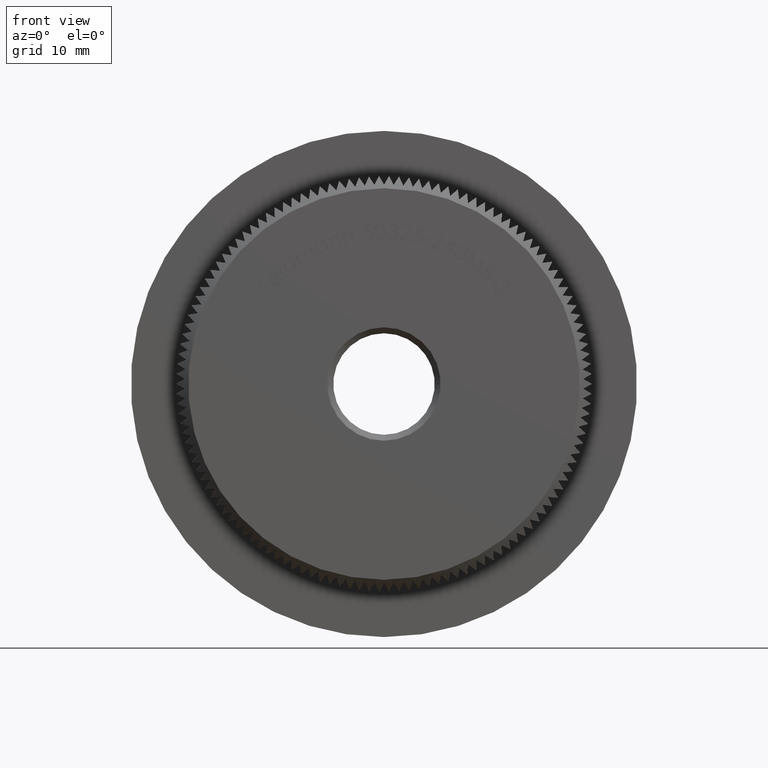
[diagram: clean part render]
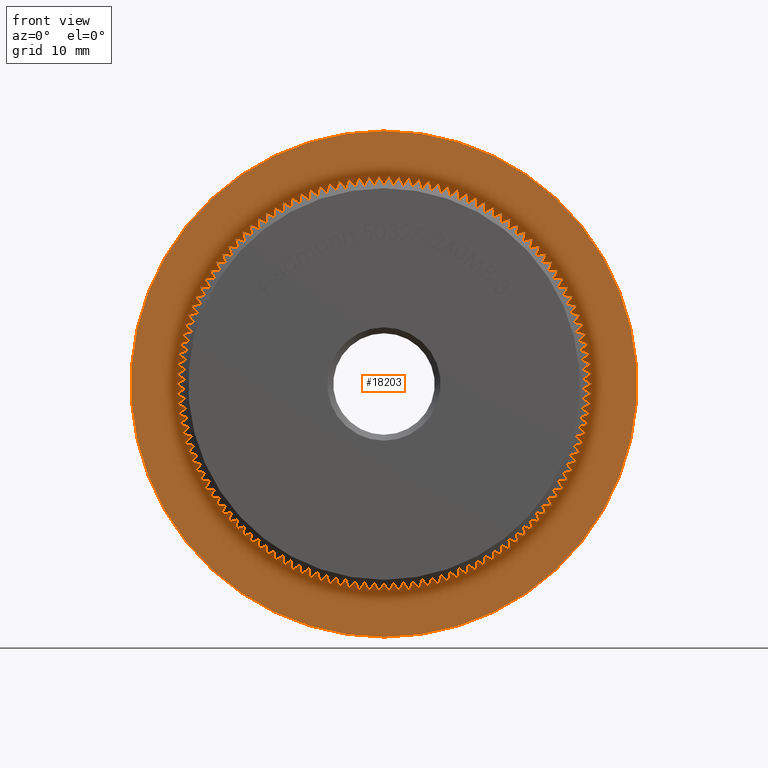
[diagram: same view with one face highlighted and labeled with its STEP entity id]
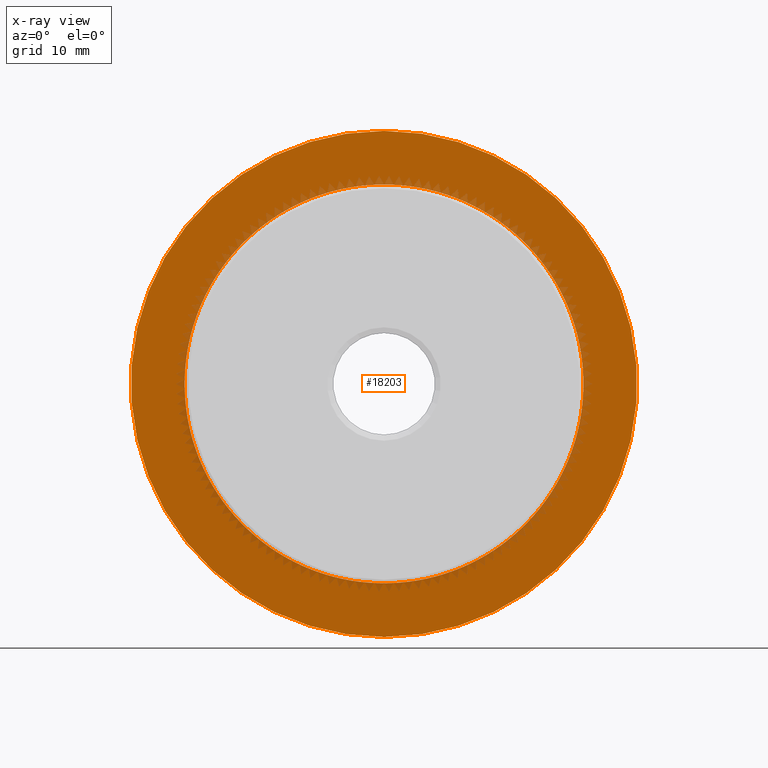
[diagram: x-ray of the same camera — body ghosted, the highlighted face saturated]
A machine part, front view. The second image highlights one B-rep face of the part: STEP entity #18203.
The next image is the same camera in x-ray: the body ghosted, the highlighted face saturated — about 7% of this face is hidden behind the body in this view.
In plain terms, the highlighted planar face has unit normal (0, -1, -0).
Its self-contained STEP definition (entity closure, byte-faithful):
#19 = DIRECTION ( 'NONE',  ( 0.0000000000000000000, 0.0000000000000000000, -1.000000000000000000 ) ) ;
#50 = CIRCLE ( 'NONE', #5882, 16.69999999999999900 ) ;
#127 = ORIENTED_EDGE ( 'NONE', *, *, #10886, .F. ) ;
#140 = VERTEX_POINT ( 'NONE', #141 ) ;
#141 = CARTESIAN_POINT ( 'NONE',  ( 5.542861147246220800, 7.999999999999994700, 15.75330728140438400 ) ) ;
#148 = DIRECTION ( 'NONE',  ( 0.0000000000000000000, 0.0000000000000000000, -1.000000000000000000 ) ) ;
#149 = DIRECTION ( 'NONE',  ( 0.0000000000000000000, 0.0000000000000000000, -1.000000000000000000 ) ) ;
#156 = ORIENTED_EDGE ( 'NONE', *, *, #21230, .F. ) ;
#183 = CARTESIAN_POINT ( 'NONE',  ( -10.45729279888976700, 8.000000000000000000, -13.02056171285587100 ) ) ;
#197 = CARTESIAN_POINT ( 'NONE',  ( 0.0000000000000000000, 8.000000000000001800, 0.0000000000000000000 ) ) ;
#265 = CARTESIAN_POINT ( 'NONE',  ( 0.0000000000000000000, 8.000000000000001800, 0.0000000000000000000 ) ) ;
#331 = CARTESIAN_POINT ( 'NONE',  ( 15.61477125284648300, 8.000000000000003600, -5.921901613610197400 ) ) ;
#357 = EDGE_CURVE ( 'NONE', #4250, #27095, #32409, .T. ) ;
#393 = CARTESIAN_POINT ( 'NONE',  ( 14.59526614486292200, 8.000000000000003600, -8.115923001151388800 ) ) ;
#414 = ORIENTED_EDGE ( 'NONE', *, *, #19685, .F. ) ;
#437 = DIRECTION ( 'NONE',  ( -0.0000000000000000000, -1.000000000000000000, -0.0000000000000000000 ) ) ;
#444 = DIRECTION ( 'NONE',  ( -0.0000000000000000000, -1.000000000000000000, -0.0000000000000000000 ) ) ;
#455 = CARTESIAN_POINT ( 'NONE',  ( -7.760876973130950600, 8.000000000000003600, 14.78711562840859600 ) ) ;
#464 = EDGE_CURVE ( 'NONE', #5273, #8386, #18970, .T. ) ;
#475 = VERTEX_POINT ( 'NONE', #331 ) ;
#569 = DIRECTION ( 'NONE',  ( 0.0000000000000000000, 0.0000000000000000000, -1.000000000000000000 ) ) ;
#574 = DIRECTION ( 'NONE',  ( -0.0000000000000000000, -1.000000000000000000, -0.0000000000000000000 ) ) ;
#580 = DIRECTION ( 'NONE',  ( -0.0000000000000000000, -1.000000000000000000, -0.0000000000000000000 ) ) ;
#594 = CIRCLE ( 'NONE', #32447, 16.69999999999999900 ) ;
#608 = CARTESIAN_POINT ( 'NONE',  ( 0.0000000000000000000, 8.000000000000001800, 0.0000000000000000000 ) ) ;
#615 = ORIENTED_EDGE ( 'NONE', *, *, #28428, .T. ) ;
#674 = EDGE_CURVE ( 'NONE', #21058, #32468, #4792, .T. ) ;
#677 = CIRCLE ( 'NONE', #10838, 16.69999999999999900 ) ;
#680 = CARTESIAN_POINT ( 'NONE',  ( 0.0000000000000000000, 8.000000000000001800, 0.0000000000000000000 ) ) ;
#732 = CIRCLE ( 'NONE', #29449, 16.69999999999999900 ) ;
#764 = AXIS2_PLACEMENT_3D ( 'NONE', #30810, #25609, #31021 ) ;
#808 = DIRECTION ( 'NONE',  ( -0.0000000000000000000, -1.000000000000000000, -0.0000000000000000000 ) ) ;
#815 = CARTESIAN_POINT ( 'NONE',  ( 0.0000000000000000000, 8.000000000000001800, 0.0000000000000000000 ) ) ;
#824 = EDGE_CURVE ( 'NONE', #18374, #24059, #21719, .T. ) ;
#840 = CARTESIAN_POINT ( 'NONE',  ( -16.30656601644883000, 8.000000000000000000, -3.603596086022426100 ) ) ;
#899 = ORIENTED_EDGE ( 'NONE', *, *, #22410, .F. ) ;
#942 = CIRCLE ( 'NONE', #16519, 16.69999999999999900 ) ;
#993 = ORIENTED_EDGE ( 'NONE', *, *, #26095, .F. ) ;
#1001 = CARTESIAN_POINT ( 'NONE',  ( -10.45729279888985600, 8.000000000000000000, 13.02056171285579800 ) ) ;
#1003 = CARTESIAN_POINT ( 'NONE',  ( 0.8068334380757372600, 8.000000000000003600, 16.68049818809986500 ) ) ;
#1006 = DIRECTION ( 'NONE',  ( 0.0000000000000000000, 0.0000000000000000000, -1.000000000000000000 ) ) ;
#1007 = EDGE_CURVE ( 'NONE', #13022, #8195, #3983, .T. ) ;
#1032 = ORIENTED_EDGE ( 'NONE', *, *, #26639, .F. ) ;
#1057 = ORIENTED_EDGE ( 'NONE', *, *, #7582, .F. ) ;
#1066 = AXIS2_PLACEMENT_3D ( 'NONE', #13226, #17888, #2901 ) ;
#1071 = EDGE_CURVE ( 'NONE', #4600, #19946, #24094, .T. ) ;
#1072 = DIRECTION ( 'NONE',  ( -0.0000000000000000000, -1.000000000000000000, -0.0000000000000000000 ) ) ;
#1108 = CARTESIAN_POINT ( 'NONE',  ( 0.0000000000000000000, 8.000000000000001800, 0.0000000000000000000 ) ) ;
#1115 = EDGE_CURVE ( 'NONE', #11414, #1269, #7556, .T. ) ;
#1119 = CIRCLE ( 'NONE', #28569, 16.69999999999999900 ) ;
#1130 = CIRCLE ( 'NONE', #19581, 16.69999999999999900 ) ;
#1154 = DIRECTION ( 'NONE',  ( 0.0000000000000000000, 0.0000000000000000000, -1.000000000000000000 ) ) ;
#1269 = VERTEX_POINT ( 'NONE', #15413 ) ;
#1271 = EDGE_CURVE ( 'NONE', #21849, #12929, #17787, .T. ) ;
#1274 = FACE_OUTER_BOUND ( 'NONE', #20031, .T. ) ;
#1279 = DIRECTION ( 'NONE',  ( 0.0000000000000000000, 0.0000000000000000000, -1.000000000000000000 ) ) ;
#1310 = VERTEX_POINT ( 'NONE', #7853 ) ;
#1441 = CARTESIAN_POINT ( 'NONE',  ( 0.0000000000000000000, 8.000000000000001800, 0.0000000000000000000 ) ) ;
#1450 = CARTESIAN_POINT ( 'NONE',  ( 0.0000000000000000000, 8.000000000000001800, 0.0000000000000000000 ) ) ;
#1461 = VERTEX_POINT ( 'NONE', #1001 ) ;
#1473 = ORIENTED_EDGE ( 'NONE', *, *, #14093, .F. ) ;
#1518 = CARTESIAN_POINT ( 'NONE',  ( 0.0000000000000000000, 8.000000000000001800, 0.0000000000000000000 ) ) ;
#1526 = CIRCLE ( 'NONE', #14962, 16.69999999999999900 ) ;
#1528 = ORIENTED_EDGE ( 'NONE', *, *, #27474, .F. ) ;
#1533 = CARTESIAN_POINT ( 'NONE',  ( 9.151808872823101700, 8.000000000000003600, -13.96905130477071200 ) ) ;
#1536 = AXIS2_PLACEMENT_3D ( 'NONE', #2365, #2585, #20088 ) ;
#1549 = EDGE_CURVE ( 'NONE', #25010, #23883, #20119, .T. ) ;
#1601 = EDGE_CURVE ( 'NONE', #2530, #28604, #26438, .T. ) ;
#1683 = CARTESIAN_POINT ( 'NONE',  ( 0.0000000000000000000, 8.000000000000001800, 0.0000000000000000000 ) ) ;
#1687 = CARTESIAN_POINT ( 'NONE',  ( -14.18611451652942000, 8.000000000000003600, 8.811592076572385000 ) ) ;
#1738 = ORIENTED_EDGE ( 'NONE', *, *, #3361, .F. ) ;
#1752 = ORIENTED_EDGE ( 'NONE', *, *, #27464, .F. ) ;
#1784 = DIRECTION ( 'NONE',  ( -0.0000000000000000000, -1.000000000000000000, -0.0000000000000000000 ) ) ;
#1824 = VERTEX_POINT ( 'NONE', #14931 ) ;
#1832 = EDGE_CURVE ( 'NONE', #9754, #11723, #12625, .T. ) ;
#1834 = ORIENTED_EDGE ( 'NONE', *, *, #29488, .F. ) ;
#1835 = EDGE_CURVE ( 'NONE', #31067, #23447, #5584, .T. ) ;
#1860 = VERTEX_POINT ( 'NONE', #2412 ) ;
#1864 = DIRECTION ( 'NONE',  ( -0.0000000000000000000, -1.000000000000000000, -0.0000000000000000000 ) ) ;
#1907 = DIRECTION ( 'NONE',  ( -0.0000000000000000000, -1.000000000000000000, -0.0000000000000000000 ) ) ;
#1914 = DIRECTION ( 'NONE',  ( -0.0000000000000000000, -1.000000000000000000, -0.0000000000000000000 ) ) ;
#1951 = DIRECTION ( 'NONE',  ( 0.0000000000000000000, 0.0000000000000000000, -1.000000000000000000 ) ) ;
#1954 = DIRECTION ( 'NONE',  ( 0.0000000000000000000, 0.0000000000000000000, -1.000000000000000000 ) ) ;
#1991 = CARTESIAN_POINT ( 'NONE',  ( 0.0000000000000000000, 8.000000000000001800, 0.0000000000000000000 ) ) ;
#2001 = ORIENTED_EDGE ( 'NONE', *, *, #24746, .F. ) ;
#2020 = DIRECTION ( 'NONE',  ( 0.0000000000000000000, 0.0000000000000000000, -1.000000000000000000 ) ) ;
#2030 = AXIS2_PLACEMENT_3D ( 'NONE', #26180, #16025, #11304 ) ;
#2051 = DIRECTION ( 'NONE',  ( 0.0000000000000000000, 0.0000000000000000000, -1.000000000000000000 ) ) ;
#2100 = DIRECTION ( 'NONE',  ( -0.0000000000000000000, -1.000000000000000000, -0.0000000000000000000 ) ) ;
#2152 = CARTESIAN_POINT ( 'NONE',  ( -15.61477125284640100, 8.000000000000003600, -5.921901613610411500 ) ) ;
#2182 = CARTESIAN_POINT ( 'NONE',  ( 0.0000000000000000000, 8.000000000000001800, 0.0000000000000000000 ) ) ;
#2189 = DIRECTION ( 'NONE',  ( -0.0000000000000000000, -1.000000000000000000, -0.0000000000000000000 ) ) ;
#2222 = EDGE_CURVE ( 'NONE', #18380, #140, #27240, .T. ) ;
#2237 = AXIS2_PLACEMENT_3D ( 'NONE', #29665, #14745, #22060 ) ;
#2325 = VERTEX_POINT ( 'NONE', #18720 ) ;
#2327 = CARTESIAN_POINT ( 'NONE',  ( 8.466229558686778800, 7.999999999999994700, 14.39489343689692900 ) ) ;
#2335 = EDGE_CURVE ( 'NONE', #1269, #4506, #14998, .T. ) ;
#2365 = CARTESIAN_POINT ( 'NONE',  ( 0.0000000000000000000, 8.000000000000001800, 0.0000000000000000000 ) ) ;
#2389 = CARTESIAN_POINT ( 'NONE',  ( -0.8068334380759700800, 7.999999999999994700, 16.68049818809985800 ) ) ;
#2398 = DIRECTION ( 'NONE',  ( -0.0000000000000000000, -1.000000000000000000, -0.0000000000000000000 ) ) ;
#2412 = CARTESIAN_POINT ( 'NONE',  ( 16.11342174083735300, 8.000000000000000000, -4.387213215916244900 ) ) ;
#2456 = ORIENTED_EDGE ( 'NONE', *, *, #16438, .F. ) ;
#2463 = AXIS2_PLACEMENT_3D ( 'NONE', #608, #6108, #10954 ) ;
#2468 = EDGE_CURVE ( 'NONE', #21285, #17681, #24489, .T. ) ;
#2489 = ORIENTED_EDGE ( 'NONE', *, *, #19101, .F. ) ;
#2496 = CIRCLE ( 'NONE', #28991, 16.69999999999999900 ) ;
#2525 = CIRCLE ( 'NONE', #10831, 16.69999999999999900 ) ;
#2530 = VERTEX_POINT ( 'NONE', #16656 ) ;
#2585 = DIRECTION ( 'NONE',  ( -0.0000000000000000000, -1.000000000000000000, -0.0000000000000000000 ) ) ;
#2596 = CARTESIAN_POINT ( 'NONE',  ( 0.0000000000000000000, 8.000000000000001800, 0.0000000000000000000 ) ) ;
#2632 = DIRECTION ( 'NONE',  ( 0.0000000000000000000, 0.0000000000000000000, -1.000000000000000000 ) ) ;
#2657 = CARTESIAN_POINT ( 'NONE',  ( 14.18611451652929400, 8.000000000000003600, 8.811592076572587500 ) ) ;
#2698 = EDGE_CURVE ( 'NONE', #4745, #9616, #50, .T. ) ;
#2704 = CARTESIAN_POINT ( 'NONE',  ( 0.0000000000000000000, 8.000000000000001800, 0.0000000000000000000 ) ) ;
#2743 = VERTEX_POINT ( 'NONE', #19853 ) ;
#2814 = CARTESIAN_POINT ( 'NONE',  ( 0.0000000000000000000, 8.000000000000001800, 0.0000000000000000000 ) ) ;
#2897 = DIRECTION ( 'NONE',  ( -0.0000000000000000000, -1.000000000000000000, -0.0000000000000000000 ) ) ;
#2898 = CARTESIAN_POINT ( 'NONE',  ( 11.66513979965735000, 8.000000000000003600, -11.95050264442672000 ) ) ;
#2901 = DIRECTION ( 'NONE',  ( 0.0000000000000000000, 0.0000000000000000000, -1.000000000000000000 ) ) ;
#2907 = ORIENTED_EDGE ( 'NONE', *, *, #25480, .F. ) ;
#2942 = DIRECTION ( 'NONE',  ( 0.0000000000000000000, 0.0000000000000000000, -1.000000000000000000 ) ) ;
#2962 = DIRECTION ( 'NONE',  ( -0.0000000000000000000, -1.000000000000000000, -0.0000000000000000000 ) ) ;
#2968 = CARTESIAN_POINT ( 'NONE',  ( 9.151808872822815700, 8.000000000000000000, 13.96905130477089900 ) ) ;
#3007 = DIRECTION ( 'NONE',  ( -0.0000000000000000000, -1.000000000000000000, -0.0000000000000000000 ) ) ;
#3012 = VERTEX_POINT ( 'NONE', #9797 ) ;
#3048 = AXIS2_PLACEMENT_3D ( 'NONE', #12114, #27549, #17177 ) ;
#3063 = ORIENTED_EDGE ( 'NONE', *, *, #27310, .F. ) ;
#3121 = ORIENTED_EDGE ( 'NONE', *, *, #7923, .F. ) ;
#3132 = AXIS2_PLACEMENT_3D ( 'NONE', #21452, #21561, #13927 ) ;
#3148 = CIRCLE ( 'NONE', #10891, 16.69999999999999900 ) ;
#3162 = VERTEX_POINT ( 'NONE', #455 ) ;
#3213 = ORIENTED_EDGE ( 'NONE', *, *, #31484, .F. ) ;
#3270 = CIRCLE ( 'NONE', #28798, 16.69999999999999900 ) ;
#3284 = ORIENTED_EDGE ( 'NONE', *, *, #20173, .F. ) ;
#3288 = EDGE_LOOP ( 'NONE', ( #4904, #29496, #899, #13696, #25932, #23679, #5295, #20269, #28158, #14683, #8962, #10912, #2489, #7069, #31746, #26955, #11991, #4428, #127, #15751, #6780, #26610, #14409, #6598, #30367, #3063, #17932, #28796, #19320, #3284, #16387, #16717, #21017, #23049, #19834, #1738, #10741, #27998, #1473, #17553, #8858, #10776, #17753, #156, #3518, #8293, #13883, #20084, #26678, #21760, #28686, #2456, #1528, #20337, #27336, #5442, #14862, #23947, #3121, #22204, #25122, #14702, #19190, #18261, #3411, #22005, #15275, #16973, #25319, #14828, #24502, #10213, #414, #4172, #23884, #7663, #25171, #7765, #15025, #26471, #1057, #7218, #2907, #19980, #8392, #6555, #29864, #4508, #10719, #24666, #17818, #28035, #24944, #10347, #30251, #6702, #17039, #16243, #20573, #12860, #1032, #16821, #10847, #31960, #4363, #12901, #1834, #11607, #31151, #1752, #16102, #31443, #12459, #6752, #993, #27805, #10817, #12410, #4964, #7825, #3213, #19757, #23332, #7353, #2001, #23847, #30999, #10715, #8692, #26619 ) ) ;
#3289 = DIRECTION ( 'NONE',  ( 0.0000000000000000000, 0.0000000000000000000, -1.000000000000000000 ) ) ;
#3359 = VERTEX_POINT ( 'NONE', #14566 ) ;
#3361 = EDGE_CURVE ( 'NONE', #30786, #26114, #28016, .T. ) ;
#3367 = AXIS2_PLACEMENT_3D ( 'NONE', #26602, #24168, #21850 ) ;
#3408 = AXIS2_PLACEMENT_3D ( 'NONE', #14603, #22253, #17277 ) ;
#3411 = ORIENTED_EDGE ( 'NONE', *, *, #28233, .F. ) ;
#3421 = CARTESIAN_POINT ( 'NONE',  ( -9.816013713284224500, 8.000000000000000000, -13.51058380606167700 ) ) ;
#3445 = CIRCLE ( 'NONE', #3408, 16.69999999999999900 ) ;
#3460 = CARTESIAN_POINT ( 'NONE',  ( 0.0000000000000000000, 8.000000000000001800, 0.0000000000000000000 ) ) ;
#3495 = CIRCLE ( 'NONE', #5610, 16.69999999999999900 ) ;
#3518 = ORIENTED_EDGE ( 'NONE', *, *, #29343, .F. ) ;
#3531 = CIRCLE ( 'NONE', #21610, 16.69999999999999900 ) ;
#3534 = CIRCLE ( 'NONE', #23605, 16.69999999999999900 ) ;
#3555 = CARTESIAN_POINT ( 'NONE',  ( 0.0000000000000000000, 8.000000000000001800, 0.0000000000000000000 ) ) ;
#3625 = DIRECTION ( 'NONE',  ( -0.0000000000000000000, -1.000000000000000000, -0.0000000000000000000 ) ) ;
#3640 = CARTESIAN_POINT ( 'NONE',  ( -16.69512383513922400, 7.999999999999989300, -0.4035345454434687300 ) ) ;
#3758 = AXIS2_PLACEMENT_3D ( 'NONE', #7946, #10249, #20587 ) ;
#3786 = DIRECTION ( 'NONE',  ( 0.0000000000000000000, 0.0000000000000000000, -1.000000000000000000 ) ) ;
#3884 = DIRECTION ( 'NONE',  ( 0.0000000000000000000, 0.0000000000000000000, -1.000000000000000000 ) ) ;
#3896 = AXIS2_PLACEMENT_3D ( 'NONE', #9098, #19008, #14332 ) ;
#3941 = AXIS2_PLACEMENT_3D ( 'NONE', #24001, #28871, #28750 ) ;
#3983 = CIRCLE ( 'NONE', #26340, 16.69999999999999900 ) ;
#4073 = AXIS2_PLACEMENT_3D ( 'NONE', #10290, #30260, #25167 ) ;
#4079 = CARTESIAN_POINT ( 'NONE',  ( 0.0000000000000000000, 8.000000000000001800, 0.0000000000000000000 ) ) ;
#4129 = VERTEX_POINT ( 'NONE', #32139 ) ;
#4172 = ORIENTED_EDGE ( 'NONE', *, *, #7107, .F. ) ;
#4250 = VERTEX_POINT ( 'NONE', #27014 ) ;
#4304 = CARTESIAN_POINT ( 'NONE',  ( 0.0000000000000000000, 8.000000000000001800, 0.0000000000000000000 ) ) ;
#4341 = EDGE_CURVE ( 'NONE', #23447, #8078, #19660, .T. ) ;
#4363 = ORIENTED_EDGE ( 'NONE', *, *, #674, .F. ) ;
#4428 = ORIENTED_EDGE ( 'NONE', *, *, #11948, .F. ) ;
#4459 = AXIS2_PLACEMENT_3D ( 'NONE', #15252, #437, #22917 ) ;
#4476 = CARTESIAN_POINT ( 'NONE',  ( 0.0000000000000000000, 8.000000000000001800, 0.0000000000000000000 ) ) ;
#4506 = VERTEX_POINT ( 'NONE', #28217 ) ;
#4508 = ORIENTED_EDGE ( 'NONE', *, *, #2468, .F. ) ;
#4540 = VERTEX_POINT ( 'NONE', #2968 ) ;
#4546 = CIRCLE ( 'NONE', #16326, 16.69999999999999900 ) ;
#4568 = CARTESIAN_POINT ( 'NONE',  ( 16.65613159984788900, 8.000000000000003600, 1.209661162701609200 ) ) ;
#4600 = VERTEX_POINT ( 'NONE', #23467 ) ;
#4606 = EDGE_CURVE ( 'NONE', #7496, #30483, #22433, .T. ) ;
#4615 = AXIS2_PLACEMENT_3D ( 'NONE', #26436, #5956, #28978 ) ;
#4690 = VERTEX_POINT ( 'NONE', #1533 ) ;
#4702 = CARTESIAN_POINT ( 'NONE',  ( 8.466229558687073700, 8.000000000000003600, -14.39489343689675300 ) ) ;
#4745 = VERTEX_POINT ( 'NONE', #28864 ) ;
#4752 = CARTESIAN_POINT ( 'NONE',  ( 0.0000000000000000000, 8.000000000000001800, 0.0000000000000000000 ) ) ;
#4756 = CARTESIAN_POINT ( 'NONE',  ( 0.0000000000000000000, 8.000000000000001800, 0.0000000000000000000 ) ) ;
#4764 = DIRECTION ( 'NONE',  ( 0.0000000000000000000, 0.0000000000000000000, -1.000000000000000000 ) ) ;
#4779 = VERTEX_POINT ( 'NONE', #26202 ) ;
#4785 = EDGE_CURVE ( 'NONE', #17681, #11705, #19257, .T. ) ;
#4792 = CIRCLE ( 'NONE', #5024, 16.69999999999999900 ) ;
#4833 = CARTESIAN_POINT ( 'NONE',  ( 0.0000000000000000000, 8.000000000000001800, 0.0000000000000000000 ) ) ;
#4904 = ORIENTED_EDGE ( 'NONE', *, *, #1007, .F. ) ;
#4940 = CARTESIAN_POINT ( 'NONE',  ( -13.74383056042408100, 8.000000000000003600, 9.486681270410272800 ) ) ;
#4961 = CARTESIAN_POINT ( 'NONE',  ( -8.466229558686977800, 8.000000000000003600, 14.39489343689681200 ) ) ;
#4964 = ORIENTED_EDGE ( 'NONE', *, *, #4341, .F. ) ;
#4975 = EDGE_CURVE ( 'NONE', #5362, #30336, #19634, .T. ) ;
#5024 = AXIS2_PLACEMENT_3D ( 'NONE', #20040, #7607, #19930 ) ;
#5090 = CIRCLE ( 'NONE', #2237, 16.69999999999999900 ) ;
#5133 = CIRCLE ( 'NONE', #10947, 16.69999999999999900 ) ;
#5143 = DIRECTION ( 'NONE',  ( 0.0000000000000000000, 0.0000000000000000000, -1.000000000000000000 ) ) ;
#5269 = AXIS2_PLACEMENT_3D ( 'NONE', #17046, #19704, #19806 ) ;
#5273 = VERTEX_POINT ( 'NONE', #3421 ) ;
#5283 = EDGE_CURVE ( 'NONE', #19105, #14432, #12549, .T. ) ;
#5295 = ORIENTED_EDGE ( 'NONE', *, *, #24517, .F. ) ;
#5317 = DIRECTION ( 'NONE',  ( 0.0000000000000000000, 0.0000000000000000000, -1.000000000000000000 ) ) ;
#5324 = EDGE_CURVE ( 'NONE', #18020, #20955, #1526, .T. ) ;
#5340 = VERTEX_POINT ( 'NONE', #25243 ) ;
#5346 = CARTESIAN_POINT ( 'NONE',  ( -3.996571593602111800, 8.000000000000003600, -16.21472835101509300 ) ) ;
#5348 = AXIS2_PLACEMENT_3D ( 'NONE', #13348, #8316, #18540 ) ;
#5362 = VERTEX_POINT ( 'NONE', #2657 ) ;
#5428 = CARTESIAN_POINT ( 'NONE',  ( 16.69512383513922800, 7.999999999999994700, -0.4035345454432355800 ) ) ;
#5442 = ORIENTED_EDGE ( 'NONE', *, *, #19642, .F. ) ;
#5453 = EDGE_CURVE ( 'NONE', #21428, #4690, #16451, .T. ) ;
#5500 = DIRECTION ( 'NONE',  ( -0.0000000000000000000, -1.000000000000000000, -0.0000000000000000000 ) ) ;
#5507 = AXIS2_PLACEMENT_3D ( 'NONE', #23149, #15606, #3289 ) ;
#5518 = VERTEX_POINT ( 'NONE', #29415 ) ;
#5555 = EDGE_CURVE ( 'NONE', #24059, #10100, #28312, .T. ) ;
#5584 = CIRCLE ( 'NONE', #14919, 16.69999999999999900 ) ;
#5596 = EDGE_CURVE ( 'NONE', #14674, #12947, #3445, .T. ) ;
#5610 = AXIS2_PLACEMENT_3D ( 'NONE', #25251, #27900, #15187 ) ;
#5640 = EDGE_CURVE ( 'NONE', #11215, #10378, #17649, .T. ) ;
#5693 = EDGE_CURVE ( 'NONE', #26114, #7598, #10938, .T. ) ;
#5761 = VERTEX_POINT ( 'NONE', #10440 ) ;
#5786 = CARTESIAN_POINT ( 'NONE',  ( -14.97032985283827100, 8.000000000000000000, 7.401298811507293100 ) ) ;
#5798 = VERTEX_POINT ( 'NONE', #8459 ) ;
#5818 = DIRECTION ( 'NONE',  ( 0.0000000000000000000, 0.0000000000000000000, -1.000000000000000000 ) ) ;
#5837 = EDGE_CURVE ( 'NONE', #10100, #14527, #11727, .T. ) ;
#5859 = VERTEX_POINT ( 'NONE', #6248 ) ;
#5882 = AXIS2_PLACEMENT_3D ( 'NONE', #14857, #24814, #9711 ) ;
#5883 = DIRECTION ( 'NONE',  ( 0.0000000000000000000, 0.0000000000000000000, -1.000000000000000000 ) ) ;
#5904 = CIRCLE ( 'NONE', #18268, 16.69999999999999900 ) ;
#5923 = CARTESIAN_POINT ( 'NONE',  ( 16.30656601644888000, 8.000000000000003600, -3.603596086022201800 ) ) ;
#5956 = DIRECTION ( 'NONE',  ( -0.0000000000000000000, -1.000000000000000000, -0.0000000000000000000 ) ) ;
#5961 = DIRECTION ( 'NONE',  ( -0.0000000000000000000, -1.000000000000000000, -0.0000000000000000000 ) ) ;
#5973 = VERTEX_POINT ( 'NONE', #32036 ) ;
#5984 = EDGE_CURVE ( 'NONE', #3359, #20823, #10562, .T. ) ;
#6058 = CIRCLE ( 'NONE', #23307, 16.69999999999999900 ) ;
#6108 = DIRECTION ( 'NONE',  ( -0.0000000000000000000, -1.000000000000000000, -0.0000000000000000000 ) ) ;
#6111 = DIRECTION ( 'NONE',  ( 0.0000000000000000000, 0.0000000000000000000, -1.000000000000000000 ) ) ;
#6126 = DIRECTION ( 'NONE',  ( 0.0000000000000000000, 0.0000000000000000000, -1.000000000000000000 ) ) ;
#6145 = CIRCLE ( 'NONE', #2030, 16.69999999999999900 ) ;
#6153 = CIRCLE ( 'NONE', #29378, 16.69999999999999900 ) ;
#6173 = VERTEX_POINT ( 'NONE', #18106 ) ;
#6248 = CARTESIAN_POINT ( 'NONE',  ( 16.46162555155859800, 8.000000000000000000, -2.811562590495379200 ) ) ;
#6253 = DIRECTION ( 'NONE',  ( -0.0000000000000000000, -1.000000000000000000, -0.0000000000000000000 ) ) ;
#6266 = VERTEX_POINT ( 'NONE', #26362 ) ;
#6365 = CARTESIAN_POINT ( 'NONE',  ( -9.151808872823005800, 8.000000000000003600, 13.96905130477077400 ) ) ;
#6394 = CARTESIAN_POINT ( 'NONE',  ( 13.74383056042394500, 8.000000000000003600, 9.486681270410468200 ) ) ;
#6481 = DIRECTION ( 'NONE',  ( 0.0000000000000000000, 0.0000000000000000000, -1.000000000000000000 ) ) ;
#6516 = CARTESIAN_POINT ( 'NONE',  ( 12.76407253311576000, 7.999999999999994700, -10.76886495269394000 ) ) ;
#6529 = VERTEX_POINT ( 'NONE', #7082 ) ;
#6541 = DIRECTION ( 'NONE',  ( -0.0000000000000000000, -1.000000000000000000, -0.0000000000000000000 ) ) ;
#6555 = ORIENTED_EDGE ( 'NONE', *, *, #14977, .F. ) ;
#6598 = ORIENTED_EDGE ( 'NONE', *, *, #8934, .F. ) ;
#6643 = DIRECTION ( 'NONE',  ( -0.0000000000000000000, -1.000000000000000000, -0.0000000000000000000 ) ) ;
#6660 = AXIS2_PLACEMENT_3D ( 'NONE', #16130, #1072, #31482 ) ;
#6671 = CIRCLE ( 'NONE', #21659, 16.69999999999999900 ) ;
#6702 = ORIENTED_EDGE ( 'NONE', *, *, #25288, .F. ) ;
#6747 = DIRECTION ( 'NONE',  ( -0.0000000000000000000, -1.000000000000000000, -0.0000000000000000000 ) ) ;
#6752 = ORIENTED_EDGE ( 'NONE', *, *, #31225, .F. ) ;
#6780 = ORIENTED_EDGE ( 'NONE', *, *, #9344, .F. ) ;
#6820 = EDGE_CURVE ( 'NONE', #28450, #3162, #23190, .T. ) ;
#6946 = CARTESIAN_POINT ( 'NONE',  ( -12.76407253311561300, 8.000000000000000000, -10.76886495269411400 ) ) ;
#7040 = AXIS2_PLACEMENT_3D ( 'NONE', #26853, #28958, #14025 ) ;
#7069 = ORIENTED_EDGE ( 'NONE', *, *, #16430, .F. ) ;
#7082 = CARTESIAN_POINT ( 'NONE',  ( -6.297483856194964400, 8.000000000000003600, 15.46711663759485900 ) ) ;
#7092 = DIRECTION ( 'NONE',  ( 0.0000000000000000000, 0.0000000000000000000, -1.000000000000000000 ) ) ;
#7099 = CARTESIAN_POINT ( 'NONE',  ( -3.996571593602223700, 8.000000000000000000, 16.21472835101506500 ) ) ;
#7107 = EDGE_CURVE ( 'NONE', #8926, #25840, #12920, .T. ) ;
#7157 = DIRECTION ( 'NONE',  ( -0.0000000000000000000, -1.000000000000000000, -0.0000000000000000000 ) ) ;
#7160 = DIRECTION ( 'NONE',  ( 0.0000000000000000000, 0.0000000000000000000, -1.000000000000000000 ) ) ;
#7194 = DIRECTION ( 'NONE',  ( 0.0000000000000000000, 0.0000000000000000000, -1.000000000000000000 ) ) ;
#7207 = EDGE_CURVE ( 'NONE', #10378, #18518, #19216, .T. ) ;
#7209 = DIRECTION ( 'NONE',  ( -0.0000000000000000000, -1.000000000000000000, -0.0000000000000000000 ) ) ;
#7218 = ORIENTED_EDGE ( 'NONE', *, *, #30034, .F. ) ;
#7230 = VERTEX_POINT ( 'NONE', #30183 ) ;
#7280 = DIRECTION ( 'NONE',  ( 0.0000000000000000000, 0.0000000000000000000, -1.000000000000000000 ) ) ;
#7305 = CARTESIAN_POINT ( 'NONE',  ( -16.65613159984790700, 8.000000000000000000, 1.209661162701376700 ) ) ;
#7353 = ORIENTED_EDGE ( 'NONE', *, *, #16728, .F. ) ;
#7354 = DIRECTION ( 'NONE',  ( -0.0000000000000000000, -1.000000000000000000, -0.0000000000000000000 ) ) ;
#7364 = DIRECTION ( 'NONE',  ( 0.0000000000000000000, 0.0000000000000000000, -1.000000000000000000 ) ) ;
#7435 = AXIS2_PLACEMENT_3D ( 'NONE', #9684, #17290, #14943 ) ;
#7457 = DIRECTION ( 'NONE',  ( -0.0000000000000000000, -1.000000000000000000, -0.0000000000000000000 ) ) ;
#7496 = VERTEX_POINT ( 'NONE', #7305 ) ;
#7529 = CIRCLE ( 'NONE', #21029, 21.19999999999999900 ) ;
#7556 = CIRCLE ( 'NONE', #18508, 16.69999999999999900 ) ;
#7582 = EDGE_CURVE ( 'NONE', #14536, #17791, #23151, .T. ) ;
#7590 = CIRCLE ( 'NONE', #21851, 16.69999999999999900 ) ;
#7598 = VERTEX_POINT ( 'NONE', #5428 ) ;
#7603 = CIRCLE ( 'NONE', #28824, 16.69999999999999900 ) ;
#7607 = DIRECTION ( 'NONE',  ( -0.0000000000000000000, -1.000000000000000000, -0.0000000000000000000 ) ) ;
#7663 = ORIENTED_EDGE ( 'NONE', *, *, #1832, .F. ) ;
#7687 = CARTESIAN_POINT ( 'NONE',  ( -16.46162555155858000, 7.999999999999989300, 2.811562590495494600 ) ) ;
#7708 = VERTEX_POINT ( 'NONE', #1003 ) ;
#7714 = DIRECTION ( 'NONE',  ( -0.0000000000000000000, -1.000000000000000000, -0.0000000000000000000 ) ) ;
#7736 = VERTEX_POINT ( 'NONE', #3640 ) ;
#7765 = ORIENTED_EDGE ( 'NONE', *, *, #10336, .F. ) ;
#7825 = ORIENTED_EDGE ( 'NONE', *, *, #1835, .F. ) ;
#7852 = VERTEX_POINT ( 'NONE', #16726 ) ;
#7853 = CARTESIAN_POINT ( 'NONE',  ( -16.57823819743751100, 7.999999999999994700, 2.012962560263842800 ) ) ;
#7923 = EDGE_CURVE ( 'NONE', #14527, #17083, #29842, .T. ) ;
#7946 = CARTESIAN_POINT ( 'NONE',  ( 0.0000000000000000000, 8.000000000000001800, 0.0000000000000000000 ) ) ;
#7957 = DIRECTION ( 'NONE',  ( 0.0000000000000000000, 0.0000000000000000000, -1.000000000000000000 ) ) ;
#7985 = DIRECTION ( 'NONE',  ( 0.0000000000000000000, 0.0000000000000000000, -1.000000000000000000 ) ) ;
#8020 = EDGE_CURVE ( 'NONE', #8195, #21431, #23144, .T. ) ;
#8035 = CARTESIAN_POINT ( 'NONE',  ( 0.0000000000000000000, 8.000000000000001800, 0.0000000000000000000 ) ) ;
#8078 = VERTEX_POINT ( 'NONE', #29831 ) ;
#8187 = DIRECTION ( 'NONE',  ( -0.0000000000000000000, -1.000000000000000000, -0.0000000000000000000 ) ) ;
#8195 = VERTEX_POINT ( 'NONE', #2389 ) ;
#8293 = ORIENTED_EDGE ( 'NONE', *, *, #16196, .F. ) ;
#8316 = DIRECTION ( 'NONE',  ( -0.0000000000000000000, -1.000000000000000000, -0.0000000000000000000 ) ) ;
#8386 = VERTEX_POINT ( 'NONE', #26260 ) ;
#8392 = ORIENTED_EDGE ( 'NONE', *, *, #20464, .F. ) ;
#8459 = CARTESIAN_POINT ( 'NONE',  ( 10.45729279888994700, 8.000000000000003600, -13.02056171285572400 ) ) ;
#8505 = CARTESIAN_POINT ( 'NONE',  ( -15.31042966178694600, 7.999999999999989300, 6.669388545547078300 ) ) ;
#8514 = DIRECTION ( 'NONE',  ( 0.0000000000000000000, 0.0000000000000000000, -1.000000000000000000 ) ) ;
#8518 = VERTEX_POINT ( 'NONE', #7099 ) ;
#8600 = DIRECTION ( 'NONE',  ( 0.0000000000000000000, 0.0000000000000000000, -1.000000000000000000 ) ) ;
#8663 = DIRECTION ( 'NONE',  ( -0.0000000000000000000, -1.000000000000000000, -0.0000000000000000000 ) ) ;
#8692 = ORIENTED_EDGE ( 'NONE', *, *, #32021, .F. ) ;
#8731 = CARTESIAN_POINT ( 'NONE',  ( 0.0000000000000000000, 8.000000000000001800, 0.0000000000000000000 ) ) ;
#8821 = DIRECTION ( 'NONE',  ( 0.0000000000000000000, 0.0000000000000000000, -1.000000000000000000 ) ) ;
#8826 = AXIS2_PLACEMENT_3D ( 'NONE', #265, #25029, #10053 ) ;
#8858 = ORIENTED_EDGE ( 'NONE', *, *, #16816, .F. ) ;
#8867 = VERTEX_POINT ( 'NONE', #10124 ) ;
#8899 = DIRECTION ( 'NONE',  ( 0.0000000000000000000, 0.0000000000000000000, -1.000000000000000000 ) ) ;
#8911 = AXIS2_PLACEMENT_3D ( 'NONE', #24133, #17067, #19175 ) ;
#8926 = VERTEX_POINT ( 'NONE', #23344 ) ;
#8934 = EDGE_CURVE ( 'NONE', #20955, #22412, #22743, .T. ) ;
#8962 = ORIENTED_EDGE ( 'NONE', *, *, #1071, .F. ) ;
#8998 = DIRECTION ( 'NONE',  ( 0.0000000000000000000, 0.0000000000000000000, -1.000000000000000000 ) ) ;
#9027 = EDGE_CURVE ( 'NONE', #5859, #30786, #6153, .T. ) ;
#9058 = DIRECTION ( 'NONE',  ( -0.0000000000000000000, -1.000000000000000000, -0.0000000000000000000 ) ) ;
#9098 = CARTESIAN_POINT ( 'NONE',  ( 0.0000000000000000000, 8.000000000000001800, 0.0000000000000000000 ) ) ;
#9118 = DIRECTION ( 'NONE',  ( -0.0000000000000000000, -1.000000000000000000, -0.0000000000000000000 ) ) ;
#9139 = CARTESIAN_POINT ( 'NONE',  ( -3.208516179806937700, 7.999999999999989300, 16.38888110652820600 ) ) ;
#9149 = DIRECTION ( 'NONE',  ( 0.0000000000000000000, 0.0000000000000000000, -1.000000000000000000 ) ) ;
#9165 = CARTESIAN_POINT ( 'NONE',  ( 0.0000000000000000000, 8.000000000000001800, 0.0000000000000000000 ) ) ;
#9168 = EDGE_CURVE ( 'NONE', #12929, #27937, #20306, .T. ) ;
#9198 = AXIS2_PLACEMENT_3D ( 'NONE', #14233, #19448, #8998 ) ;
#9271 = DIRECTION ( 'NONE',  ( 0.0000000000000000000, 0.0000000000000000000, -1.000000000000000000 ) ) ;
#9317 = VERTEX_POINT ( 'NONE', #21481 ) ;
#9327 = VERTEX_POINT ( 'NONE', #15864 ) ;
#9344 = EDGE_CURVE ( 'NONE', #30336, #19005, #24635, .T. ) ;
#9465 = CARTESIAN_POINT ( 'NONE',  ( 0.0000000000000000000, 8.000000000000001800, 0.0000000000000000000 ) ) ;
#9488 = DIRECTION ( 'NONE',  ( -0.0000000000000000000, -1.000000000000000000, -0.0000000000000000000 ) ) ;
#9495 = CARTESIAN_POINT ( 'NONE',  ( 0.0000000000000000000, 8.000000000000001800, 0.0000000000000000000 ) ) ;
#9497 = EDGE_CURVE ( 'NONE', #32468, #2530, #19135, .T. ) ;
#9500 = DIRECTION ( 'NONE',  ( 0.0000000000000000000, 0.0000000000000000000, -1.000000000000000000 ) ) ;
#9533 = AXIS2_PLACEMENT_3D ( 'NONE', #22969, #15416, #5317 ) ;
#9537 = DIRECTION ( 'NONE',  ( -0.0000000000000000000, -1.000000000000000000, -0.0000000000000000000 ) ) ;
#9606 = DIRECTION ( 'NONE',  ( -0.0000000000000000000, -1.000000000000000000, -0.0000000000000000000 ) ) ;
#9608 = CARTESIAN_POINT ( 'NONE',  ( 0.0000000000000000000, 8.000000000000001800, 0.0000000000000000000 ) ) ;
#9616 = VERTEX_POINT ( 'NONE', #16850 ) ;
#9630 = EDGE_CURVE ( 'NONE', #31623, #21058, #16757, .T. ) ;
#9644 = CARTESIAN_POINT ( 'NONE',  ( 0.0000000000000000000, 8.000000000000001800, 0.0000000000000000000 ) ) ;
#9660 = DIRECTION ( 'NONE',  ( -0.0000000000000000000, -1.000000000000000000, -0.0000000000000000000 ) ) ;
#9666 = CARTESIAN_POINT ( 'NONE',  ( -16.65613159984789600, 8.000000000000008900, -1.209661162701493000 ) ) ;
#9684 = CARTESIAN_POINT ( 'NONE',  ( 0.0000000000000000000, 8.000000000000001800, 0.0000000000000000000 ) ) ;
#9685 = AXIS2_PLACEMENT_3D ( 'NONE', #13974, #6643, #9271 ) ;
#9711 = DIRECTION ( 'NONE',  ( 0.0000000000000000000, 0.0000000000000000000, -1.000000000000000000 ) ) ;
#9754 = VERTEX_POINT ( 'NONE', #12217 ) ;
#9774 = AXIS2_PLACEMENT_3D ( 'NONE', #19138, #21887, #14030 ) ;
#9797 = CARTESIAN_POINT ( 'NONE',  ( -14.97032985283822100, 8.000000000000000000, -7.401298811507395200 ) ) ;
#9950 = CARTESIAN_POINT ( 'NONE',  ( 5.542861147246549400, 8.000000000000000000, -15.75330728140426500 ) ) ;
#9969 = DIRECTION ( 'NONE',  ( 0.0000000000000000000, 0.0000000000000000000, -1.000000000000000000 ) ) ;
#9990 = DIRECTION ( 'NONE',  ( 0.0000000000000000000, 0.0000000000000000000, -1.000000000000000000 ) ) ;
#10032 = CIRCLE ( 'NONE', #21645, 16.69999999999999900 ) ;
#10053 = DIRECTION ( 'NONE',  ( 0.0000000000000000000, 0.0000000000000000000, -1.000000000000000000 ) ) ;
#10080 = AXIS2_PLACEMENT_3D ( 'NONE', #25522, #10428, #17826 ) ;
#10100 = VERTEX_POINT ( 'NONE', #32368 ) ;
#10105 = CARTESIAN_POINT ( 'NONE',  ( 0.0000000000000000000, 8.000000000000001800, 0.0000000000000000000 ) ) ;
#10124 = CARTESIAN_POINT ( 'NONE',  ( 9.816013713284412700, 8.000000000000003600, -13.51058380606154000 ) ) ;
#10212 = CARTESIAN_POINT ( 'NONE',  ( -15.31042966178689600, 8.000000000000000000, -6.669388545547183100 ) ) ;
#10213 = ORIENTED_EDGE ( 'NONE', *, *, #10329, .F. ) ;
#10249 = DIRECTION ( 'NONE',  ( -0.0000000000000000000, -1.000000000000000000, -0.0000000000000000000 ) ) ;
#10260 = CARTESIAN_POINT ( 'NONE',  ( 0.0000000000000000000, 8.000000000000001800, 0.0000000000000000000 ) ) ;
#10290 = CARTESIAN_POINT ( 'NONE',  ( 0.0000000000000000000, 8.000000000000001800, 0.0000000000000000000 ) ) ;
#10299 = CARTESIAN_POINT ( 'NONE',  ( -12.22888673218275800, 8.000000000000003600, -11.37296484173957500 ) ) ;
#10321 = AXIS2_PLACEMENT_3D ( 'NONE', #28653, #23689, #8600 ) ;
#10329 = EDGE_CURVE ( 'NONE', #16556, #22991, #25807, .T. ) ;
#10336 = EDGE_CURVE ( 'NONE', #8386, #7230, #13942, .T. ) ;
#10339 = CARTESIAN_POINT ( 'NONE',  ( 16.65613159984791000, 8.000000000000008900, -1.209661162701260300 ) ) ;
#10347 = ORIENTED_EDGE ( 'NONE', *, *, #26490, .F. ) ;
#10378 = VERTEX_POINT ( 'NONE', #5786 ) ;
#10401 = DIRECTION ( 'NONE',  ( -0.0000000000000000000, -1.000000000000000000, -0.0000000000000000000 ) ) ;
#10417 = CIRCLE ( 'NONE', #11649, 16.69999999999999900 ) ;
#10424 = AXIS2_PLACEMENT_3D ( 'NONE', #19137, #9118, #6481 ) ;
#10428 = DIRECTION ( 'NONE',  ( -0.0000000000000000000, -1.000000000000000000, -0.0000000000000000000 ) ) ;
#10440 = CARTESIAN_POINT ( 'NONE',  ( 16.11342174083726100, 7.999999999999994700, 4.387213215916583300 ) ) ;
#10500 = CIRCLE ( 'NONE', #26485, 16.69999999999999900 ) ;
#10509 = AXIS2_PLACEMENT_3D ( 'NONE', #30648, #22949, #148 ) ;
#10514 = DIRECTION ( 'NONE',  ( 0.0000000000000000000, 0.0000000000000000000, -1.000000000000000000 ) ) ;
#10550 = VERTEX_POINT ( 'NONE', #2152 ) ;
#10562 = CIRCLE ( 'NONE', #20490, 16.69999999999999900 ) ;
#10592 = CARTESIAN_POINT ( 'NONE',  ( -11.07414839262121300, 8.000000000000003600, -12.50012949445744700 ) ) ;
#10658 = EDGE_CURVE ( 'NONE', #20977, #10550, #18683, .T. ) ;
#10663 = AXIS2_PLACEMENT_3D ( 'NONE', #4756, #22515, #27236 ) ;
#10670 = CARTESIAN_POINT ( 'NONE',  ( 0.0000000000000000000, 8.000000000000001800, 0.0000000000000000000 ) ) ;
#10711 = CARTESIAN_POINT ( 'NONE',  ( -11.07414839262129800, 8.000000000000000000, 12.50012949445737200 ) ) ;
#10715 = ORIENTED_EDGE ( 'NONE', *, *, #11332, .F. ) ;
#10719 = ORIENTED_EDGE ( 'NONE', *, *, #14626, .F. ) ;
#10741 = ORIENTED_EDGE ( 'NONE', *, *, #9027, .F. ) ;
#10770 = DIRECTION ( 'NONE',  ( -0.0000000000000000000, -1.000000000000000000, -0.0000000000000000000 ) ) ;
#10776 = ORIENTED_EDGE ( 'NONE', *, *, #16571, .F. ) ;
#10817 = ORIENTED_EDGE ( 'NONE', *, *, #16639, .F. ) ;
#10824 = CARTESIAN_POINT ( 'NONE',  ( -11.66513979965718300, 8.000000000000003600, -11.95050264442688400 ) ) ;
#10831 = AXIS2_PLACEMENT_3D ( 'NONE', #20800, #2962, #20905 ) ;
#10838 = AXIS2_PLACEMENT_3D ( 'NONE', #23162, #30764, #7957 ) ;
#10847 = ORIENTED_EDGE ( 'NONE', *, *, #1601, .F. ) ;
#10886 = EDGE_CURVE ( 'NONE', #18732, #15539, #10417, .T. ) ;
#10891 = AXIS2_PLACEMENT_3D ( 'NONE', #13244, #31349, #18647 ) ;
#10912 = ORIENTED_EDGE ( 'NONE', *, *, #21458, .F. ) ;
#10932 = CARTESIAN_POINT ( 'NONE',  ( 16.30656601644880200, 8.000000000000003600, 3.603596086022542900 ) ) ;
#10938 = CIRCLE ( 'NONE', #16465, 16.69999999999999900 ) ;
#10947 = AXIS2_PLACEMENT_3D ( 'NONE', #23089, #13233, #15762 ) ;
#10954 = DIRECTION ( 'NONE',  ( 0.0000000000000000000, 0.0000000000000000000, -1.000000000000000000 ) ) ;
#10961 = CIRCLE ( 'NONE', #23375, 16.69999999999999900 ) ;
#11009 = DIRECTION ( 'NONE',  ( -0.0000000000000000000, -1.000000000000000000, -0.0000000000000000000 ) ) ;
#11024 = CIRCLE ( 'NONE', #3758, 16.69999999999999900 ) ;
#11098 = EDGE_CURVE ( 'NONE', #23532, #4129, #2525, .T. ) ;
#11146 = DIRECTION ( 'NONE',  ( -0.0000000000000000000, -1.000000000000000000, -0.0000000000000000000 ) ) ;
#11215 = VERTEX_POINT ( 'NONE', #31176 ) ;
#11219 = DIRECTION ( 'NONE',  ( 0.0000000000000000000, 0.0000000000000000000, -1.000000000000000000 ) ) ;
#11238 = CARTESIAN_POINT ( 'NONE',  ( 0.0000000000000000000, 8.000000000000001800, 0.0000000000000000000 ) ) ;
#11257 = DIRECTION ( 'NONE',  ( 0.0000000000000000000, 0.0000000000000000000, -1.000000000000000000 ) ) ;
#11282 = EDGE_CURVE ( 'NONE', #20562, #20046, #15487, .T. ) ;
#11287 = EDGE_CURVE ( 'NONE', #7736, #25010, #942, .T. ) ;
#11304 = DIRECTION ( 'NONE',  ( 0.0000000000000000000, 0.0000000000000000000, -1.000000000000000000 ) ) ;
#11332 = EDGE_CURVE ( 'NONE', #30820, #30288, #6058, .T. ) ;
#11376 = CARTESIAN_POINT ( 'NONE',  ( 0.0000000000000000000, 8.000000000000001800, 0.0000000000000000000 ) ) ;
#11414 = VERTEX_POINT ( 'NONE', #27258 ) ;
#11540 = CARTESIAN_POINT ( 'NONE',  ( 6.297483856195069200, 8.000000000000000000, -15.46711663759482000 ) ) ;
#11546 = DIRECTION ( 'NONE',  ( 0.0000000000000000000, 0.0000000000000000000, -1.000000000000000000 ) ) ;
#11553 = DIRECTION ( 'NONE',  ( 0.0000000000000000000, 0.0000000000000000000, -1.000000000000000000 ) ) ;
#11607 = ORIENTED_EDGE ( 'NONE', *, *, #7207, .F. ) ;
#11609 = AXIS2_PLACEMENT_3D ( 'NONE', #17539, #22286, #14639 ) ;
#11649 = AXIS2_PLACEMENT_3D ( 'NONE', #4079, #31871, #24357 ) ;
#11705 = VERTEX_POINT ( 'NONE', #28605 ) ;
#11708 = EDGE_CURVE ( 'NONE', #140, #5340, #3270, .T. ) ;
#11723 = VERTEX_POINT ( 'NONE', #11942 ) ;
#11727 = CIRCLE ( 'NONE', #24302, 16.69999999999999900 ) ;
#11747 = DIRECTION ( 'NONE',  ( 0.0000000000000000000, 0.0000000000000000000, -1.000000000000000000 ) ) ;
#11775 = CIRCLE ( 'NONE', #3132, 16.69999999999999900 ) ;
#11884 = DIRECTION ( 'NONE',  ( -0.0000000000000000000, -1.000000000000000000, -0.0000000000000000000 ) ) ;
#11904 = AXIS2_PLACEMENT_3D ( 'NONE', #17047, #27086, #19483 ) ;
#11909 = CIRCLE ( 'NONE', #13062, 16.69999999999999900 ) ;
#11914 = EDGE_CURVE ( 'NONE', #31948, #5973, #28503, .T. ) ;
#11922 = DIRECTION ( 'NONE',  ( -0.0000000000000000000, -1.000000000000000000, -0.0000000000000000000 ) ) ;
#11942 = CARTESIAN_POINT ( 'NONE',  ( -7.037398499801150300, 7.999999999999986700, -15.14480182620415300 ) ) ;
#11948 = EDGE_CURVE ( 'NONE', #15539, #14674, #13479, .T. ) ;
#11989 = EDGE_CURVE ( 'NONE', #20823, #14950, #24547, .T. ) ;
#11991 = ORIENTED_EDGE ( 'NONE', *, *, #5596, .F. ) ;
#12048 = AXIS2_PLACEMENT_3D ( 'NONE', #17380, #9660, #17265 ) ;
#12073 = VERTEX_POINT ( 'NONE', #10932 ) ;
#12106 = EDGE_CURVE ( 'NONE', #9317, #20562, #2496, .T. ) ;
#12114 = CARTESIAN_POINT ( 'NONE',  ( 0.0000000000000000000, 8.000000000000001800, 0.0000000000000000000 ) ) ;
#12140 = AXIS2_PLACEMENT_3D ( 'NONE', #27494, #12382, #1954 ) ;
#12155 = CARTESIAN_POINT ( 'NONE',  ( -14.18611451652936100, 8.000000000000003600, -8.811592076572480900 ) ) ;
#12181 = CIRCLE ( 'NONE', #19742, 16.69999999999999900 ) ;
#12184 = CIRCLE ( 'NONE', #30176, 16.69999999999999900 ) ;
#12208 = CARTESIAN_POINT ( 'NONE',  ( 14.59526614486275700, 7.999999999999994700, 8.115923001151696100 ) ) ;
#12217 = CARTESIAN_POINT ( 'NONE',  ( -7.760876973130844900, 8.000000000000003600, -14.78711562840865100 ) ) ;
#12237 = CARTESIAN_POINT ( 'NONE',  ( 0.0000000000000000000, 8.000000000000001800, 0.0000000000000000000 ) ) ;
#12295 = EDGE_CURVE ( 'NONE', #1824, #6173, #21384, .T. ) ;
#12382 = DIRECTION ( 'NONE',  ( -0.0000000000000000000, -1.000000000000000000, -0.0000000000000000000 ) ) ;
#12410 = ORIENTED_EDGE ( 'NONE', *, *, #20083, .F. ) ;
#12459 = ORIENTED_EDGE ( 'NONE', *, *, #20545, .F. ) ;
#12487 = CIRCLE ( 'NONE', #11904, 16.69999999999999900 ) ;
#12532 = CIRCLE ( 'NONE', #27821, 16.69999999999999900 ) ;
#12549 = CIRCLE ( 'NONE', #25132, 16.69999999999999900 ) ;
#12595 = AXIS2_PLACEMENT_3D ( 'NONE', #26154, #24050, #3786 ) ;
#12598 = VERTEX_POINT ( 'NONE', #14106 ) ;
#12610 = CIRCLE ( 'NONE', #28513, 16.69999999999999900 ) ;
#12625 = CIRCLE ( 'NONE', #24463, 16.69999999999999900 ) ;
#12629 = CIRCLE ( 'NONE', #19779, 16.69999999999999900 ) ;
#12633 = AXIS2_PLACEMENT_3D ( 'NONE', #25838, #8663, #6126 ) ;
#12725 = DIRECTION ( 'NONE',  ( -0.0000000000000000000, -1.000000000000000000, -0.0000000000000000000 ) ) ;
#12754 = CARTESIAN_POINT ( 'NONE',  ( 0.0000000000000000000, 8.000000000000001800, 0.0000000000000000000 ) ) ;
#12768 = DIRECTION ( 'NONE',  ( -0.0000000000000000000, -1.000000000000000000, -0.0000000000000000000 ) ) ;
#12831 = EDGE_CURVE ( 'NONE', #19946, #18380, #7590, .T. ) ;
#12860 = ORIENTED_EDGE ( 'NONE', *, *, #4606, .F. ) ;
#12863 = DIRECTION ( 'NONE',  ( -0.0000000000000000000, -1.000000000000000000, -0.0000000000000000000 ) ) ;
#12901 = ORIENTED_EDGE ( 'NONE', *, *, #9630, .F. ) ;
#12920 = CIRCLE ( 'NONE', #14561, 16.69999999999999900 ) ;
#12929 = VERTEX_POINT ( 'NONE', #2898 ) ;
#12947 = VERTEX_POINT ( 'NONE', #21279 ) ;
#13018 = CARTESIAN_POINT ( 'NONE',  ( 3.208516179807053200, 8.000000000000003600, -16.38888110652817800 ) ) ;
#13022 = VERTEX_POINT ( 'NONE', #21387 ) ;
#13047 = CIRCLE ( 'NONE', #1066, 16.69999999999999900 ) ;
#13062 = AXIS2_PLACEMENT_3D ( 'NONE', #815, #13443, #5883 ) ;
#13180 = CARTESIAN_POINT ( 'NONE',  ( 0.0000000000000000000, 8.000000000000001800, 0.0000000000000000000 ) ) ;
#13226 = CARTESIAN_POINT ( 'NONE',  ( 0.0000000000000000000, 8.000000000000001800, 0.0000000000000000000 ) ) ;
#13233 = DIRECTION ( 'NONE',  ( -0.0000000000000000000, -1.000000000000000000, -0.0000000000000000000 ) ) ;
#13244 = CARTESIAN_POINT ( 'NONE',  ( 0.0000000000000000000, 8.000000000000001800, 0.0000000000000000000 ) ) ;
#13298 = DIRECTION ( 'NONE',  ( -0.0000000000000000000, -1.000000000000000000, -0.0000000000000000000 ) ) ;
#13348 = CARTESIAN_POINT ( 'NONE',  ( 0.0000000000000000000, 8.000000000000001800, 0.0000000000000000000 ) ) ;
#13356 = CIRCLE ( 'NONE', #18699, 16.69999999999999900 ) ;
#13362 = CARTESIAN_POINT ( 'NONE',  ( -2.412967127805887700, 7.999999999999994700, -16.52475687083257200 ) ) ;
#13413 = DIRECTION ( 'NONE',  ( 0.0000000000000000000, 0.0000000000000000000, -1.000000000000000000 ) ) ;
#13424 = AXIS2_PLACEMENT_3D ( 'NONE', #2596, #7457, #29937 ) ;
#13443 = DIRECTION ( 'NONE',  ( -0.0000000000000000000, -1.000000000000000000, -0.0000000000000000000 ) ) ;
#13479 = CIRCLE ( 'NONE', #13551, 16.69999999999999900 ) ;
#13485 = DIRECTION ( 'NONE',  ( 0.0000000000000000000, 0.0000000000000000000, -1.000000000000000000 ) ) ;
#13551 = AXIS2_PLACEMENT_3D ( 'NONE', #30687, #3007, #20629 ) ;
#13616 = CARTESIAN_POINT ( 'NONE',  ( 0.0000000000000000000, 8.000000000000001800, 0.0000000000000000000 ) ) ;
#13696 = ORIENTED_EDGE ( 'NONE', *, *, #30129, .F. ) ;
#13748 = CARTESIAN_POINT ( 'NONE',  ( 12.22888673218268500, 8.000000000000000000, 11.37296484173965500 ) ) ;
#13877 = DIRECTION ( 'NONE',  ( -0.0000000000000000000, -1.000000000000000000, -0.0000000000000000000 ) ) ;
#13883 = ORIENTED_EDGE ( 'NONE', *, *, #25703, .F. ) ;
#13894 = AXIS2_PLACEMENT_3D ( 'NONE', #10670, #28316, #30855 ) ;
#13904 = CIRCLE ( 'NONE', #27325, 16.69999999999999900 ) ;
#13927 = DIRECTION ( 'NONE',  ( 0.0000000000000000000, 0.0000000000000000000, -1.000000000000000000 ) ) ;
#13942 = CIRCLE ( 'NONE', #31321, 16.69999999999999900 ) ;
#13974 = CARTESIAN_POINT ( 'NONE',  ( 0.0000000000000000000, 8.000000000000001800, 0.0000000000000000000 ) ) ;
#14025 = DIRECTION ( 'NONE',  ( 0.0000000000000000000, 0.0000000000000000000, -1.000000000000000000 ) ) ;
#14030 = DIRECTION ( 'NONE',  ( 0.0000000000000000000, 0.0000000000000000000, -1.000000000000000000 ) ) ;
#14054 = CARTESIAN_POINT ( 'NONE',  ( 13.26944725121978400, 8.000000000000000000, -10.13961388057236200 ) ) ;
#14093 = EDGE_CURVE ( 'NONE', #1860, #22608, #12629, .T. ) ;
#14103 = CIRCLE ( 'NONE', #10663, 16.69999999999999900 ) ;
#14106 = CARTESIAN_POINT ( 'NONE',  ( 16.46162555155853700, 8.000000000000000000, 2.811562590495724200 ) ) ;
#14187 = EDGE_CURVE ( 'NONE', #27749, #9327, #7529, .T. ) ;
#14224 = CARTESIAN_POINT ( 'NONE',  ( -15.88264382212908100, 7.999999999999994700, 5.160583806061577400 ) ) ;
#14233 = CARTESIAN_POINT ( 'NONE',  ( 0.0000000000000000000, 8.000000000000001800, 0.0000000000000000000 ) ) ;
#14278 = CARTESIAN_POINT ( 'NONE',  ( -1.611782479272290600, 7.999999999999994700, -16.62203829978474400 ) ) ;
#14289 = CIRCLE ( 'NONE', #3048, 16.69999999999999900 ) ;
#14332 = DIRECTION ( 'NONE',  ( 0.0000000000000000000, 0.0000000000000000000, -1.000000000000000000 ) ) ;
#14405 = VERTEX_POINT ( 'NONE', #30018 ) ;
#14409 = ORIENTED_EDGE ( 'NONE', *, *, #27800, .F. ) ;
#14432 = VERTEX_POINT ( 'NONE', #27803 ) ;
#14460 = CARTESIAN_POINT ( 'NONE',  ( 15.31042966178684800, 8.000000000000003600, 6.669388545547293200 ) ) ;
#14527 = VERTEX_POINT ( 'NONE', #9950 ) ;
#14536 = VERTEX_POINT ( 'NONE', #10592 ) ;
#14561 = AXIS2_PLACEMENT_3D ( 'NONE', #4833, #27083, #7160 ) ;
#14566 = CARTESIAN_POINT ( 'NONE',  ( -3.208516179806824000, 8.000000000000000000, -16.38888110652822400 ) ) ;
#14603 = CARTESIAN_POINT ( 'NONE',  ( 0.0000000000000000000, 8.000000000000001800, 0.0000000000000000000 ) ) ;
#14609 = DIRECTION ( 'NONE',  ( 0.0000000000000000000, 0.0000000000000000000, -1.000000000000000000 ) ) ;
#14626 = EDGE_CURVE ( 'NONE', #3012, #21285, #25221, .T. ) ;
#14639 = DIRECTION ( 'NONE',  ( 0.0000000000000000000, 0.0000000000000000000, -1.000000000000000000 ) ) ;
#14674 = VERTEX_POINT ( 'NONE', #18618 ) ;
#14683 = ORIENTED_EDGE ( 'NONE', *, *, #12831, .F. ) ;
#14702 = ORIENTED_EDGE ( 'NONE', *, *, #824, .F. ) ;
#14712 = CARTESIAN_POINT ( 'NONE',  ( -16.69512383513922400, 7.999999999999994700, 0.4035345454433520400 ) ) ;
#14745 = DIRECTION ( 'NONE',  ( -0.0000000000000000000, -1.000000000000000000, -0.0000000000000000000 ) ) ;
#14828 = ORIENTED_EDGE ( 'NONE', *, *, #5984, .F. ) ;
#14857 = CARTESIAN_POINT ( 'NONE',  ( 0.0000000000000000000, 8.000000000000001800, 0.0000000000000000000 ) ) ;
#14858 = DIRECTION ( 'NONE',  ( 0.0000000000000000000, 0.0000000000000000000, -1.000000000000000000 ) ) ;
#14862 = ORIENTED_EDGE ( 'NONE', *, *, #16965, .F. ) ;
#14875 = AXIS2_PLACEMENT_3D ( 'NONE', #15312, #580, #18184 ) ;
#14902 = CARTESIAN_POINT ( 'NONE',  ( 0.0000000000000000000, 8.000000000000001800, 0.0000000000000000000 ) ) ;
#14911 = DIRECTION ( 'NONE',  ( -0.0000000000000000000, -1.000000000000000000, -0.0000000000000000000 ) ) ;
#14917 = VERTEX_POINT ( 'NONE', #29528 ) ;
#14919 = AXIS2_PLACEMENT_3D ( 'NONE', #12754, #444, #2942 ) ;
#14925 = EDGE_CURVE ( 'NONE', #14917, #6266, #13356, .T. ) ;
#14931 = CARTESIAN_POINT ( 'NONE',  ( 10.45729279888968400, 7.999999999999989300, 13.02056171285594200 ) ) ;
#14939 = CIRCLE ( 'NONE', #28288, 16.69999999999999900 ) ;
#14943 = DIRECTION ( 'NONE',  ( 0.0000000000000000000, 0.0000000000000000000, -1.000000000000000000 ) ) ;
#14950 = VERTEX_POINT ( 'NONE', #14278 ) ;
#14962 = AXIS2_PLACEMENT_3D ( 'NONE', #31091, #23383, #149 ) ;
#14977 = EDGE_CURVE ( 'NONE', #11705, #25442, #5904, .T. ) ;
#14998 = CIRCLE ( 'NONE', #27214, 16.69999999999999900 ) ;
#15025 = ORIENTED_EDGE ( 'NONE', *, *, #464, .F. ) ;
#15040 = DIRECTION ( 'NONE',  ( 0.0000000000000000000, 0.0000000000000000000, -1.000000000000000000 ) ) ;
#15066 = EDGE_CURVE ( 'NONE', #30288, #8518, #3148, .T. ) ;
#15100 = DIRECTION ( 'NONE',  ( -0.0000000000000000000, -1.000000000000000000, -0.0000000000000000000 ) ) ;
#15187 = DIRECTION ( 'NONE',  ( 0.0000000000000000000, 0.0000000000000000000, -1.000000000000000000 ) ) ;
#15250 = AXIS2_PLACEMENT_3D ( 'NONE', #3555, #808, #8514 ) ;
#15252 = CARTESIAN_POINT ( 'NONE',  ( 0.0000000000000000000, 8.000000000000001800, 0.0000000000000000000 ) ) ;
#15275 = ORIENTED_EDGE ( 'NONE', *, *, #2698, .F. ) ;
#15312 = CARTESIAN_POINT ( 'NONE',  ( 0.0000000000000000000, 8.000000000000001800, 0.0000000000000000000 ) ) ;
#15314 = EDGE_CURVE ( 'NONE', #7708, #13022, #3534, .T. ) ;
#15375 = CARTESIAN_POINT ( 'NONE',  ( 0.0000000000000000000, 8.000000000000001800, 0.0000000000000000000 ) ) ;
#15413 = CARTESIAN_POINT ( 'NONE',  ( 3.208516179806710300, 7.999999999999994700, 16.38888110652824900 ) ) ;
#15416 = DIRECTION ( 'NONE',  ( -0.0000000000000000000, -1.000000000000000000, -0.0000000000000000000 ) ) ;
#15439 = CIRCLE ( 'NONE', #9685, 16.69999999999999900 ) ;
#15455 = CARTESIAN_POINT ( 'NONE',  ( -15.61477125284644700, 7.999999999999989300, 5.921901613610304000 ) ) ;
#15484 = DIRECTION ( 'NONE',  ( 0.0000000000000000000, 0.0000000000000000000, -1.000000000000000000 ) ) ;
#15487 = CIRCLE ( 'NONE', #9774, 16.69999999999999900 ) ;
#15539 = VERTEX_POINT ( 'NONE', #13748 ) ;
#15606 = DIRECTION ( 'NONE',  ( -0.0000000000000000000, -1.000000000000000000, -0.0000000000000000000 ) ) ;
#15628 = DIRECTION ( 'NONE',  ( 0.0000000000000000000, 0.0000000000000000000, -1.000000000000000000 ) ) ;
#15751 = ORIENTED_EDGE ( 'NONE', *, *, #26884, .F. ) ;
#15762 = DIRECTION ( 'NONE',  ( 0.0000000000000000000, 0.0000000000000000000, -1.000000000000000000 ) ) ;
#15843 = AXIS2_PLACEMENT_3D ( 'NONE', #27710, #15100, #27824 ) ;
#15849 = EDGE_CURVE ( 'NONE', #18591, #30304, #1130, .T. ) ;
#15850 = CARTESIAN_POINT ( 'NONE',  ( 0.0000000000000000000, 8.000000000000001800, 0.0000000000000000000 ) ) ;
#15864 = CARTESIAN_POINT ( 'NONE',  ( 2.596251214192388800E-015, 8.000000000000000000, 21.19999999999999900 ) ) ;
#15938 = DIRECTION ( 'NONE',  ( -0.0000000000000000000, -1.000000000000000000, -0.0000000000000000000 ) ) ;
#16025 = DIRECTION ( 'NONE',  ( -0.0000000000000000000, -1.000000000000000000, -0.0000000000000000000 ) ) ;
#16102 = ORIENTED_EDGE ( 'NONE', *, *, #11282, .F. ) ;
#16112 = DIRECTION ( 'NONE',  ( -0.0000000000000000000, -1.000000000000000000, -0.0000000000000000000 ) ) ;
#16130 = CARTESIAN_POINT ( 'NONE',  ( 0.0000000000000000000, 8.000000000000001800, 0.0000000000000000000 ) ) ;
#16196 = EDGE_CURVE ( 'NONE', #2743, #5518, #22880, .T. ) ;
#16243 = ORIENTED_EDGE ( 'NONE', *, *, #11287, .F. ) ;
#16245 = CARTESIAN_POINT ( 'NONE',  ( 0.0000000000000000000, 8.000000000000001800, 0.0000000000000000000 ) ) ;
#16270 = DIRECTION ( 'NONE',  ( 0.0000000000000000000, 0.0000000000000000000, -1.000000000000000000 ) ) ;
#16271 = AXIS2_PLACEMENT_3D ( 'NONE', #24701, #9606, #14858 ) ;
#16277 = AXIS2_PLACEMENT_3D ( 'NONE', #4476, #1864, #27186 ) ;
#16314 = CARTESIAN_POINT ( 'NONE',  ( 0.8068334380760869800, 7.999999999999994700, -16.68049818809985000 ) ) ;
#16326 = AXIS2_PLACEMENT_3D ( 'NONE', #27761, #12863, #27979 ) ;
#16328 = DIRECTION ( 'NONE',  ( -0.0000000000000000000, -1.000000000000000000, -0.0000000000000000000 ) ) ;
#16332 = CIRCLE ( 'NONE', #12140, 16.69999999999999900 ) ;
#16387 = ORIENTED_EDGE ( 'NONE', *, *, #32645, .F. ) ;
#16391 = CIRCLE ( 'NONE', #6660, 16.69999999999999900 ) ;
#16415 = EDGE_CURVE ( 'NONE', #17083, #22961, #25596, .T. ) ;
#16430 = EDGE_CURVE ( 'NONE', #6173, #4540, #5133, .T. ) ;
#16438 = EDGE_CURVE ( 'NONE', #5798, #21849, #12184, .T. ) ;
#16448 = CARTESIAN_POINT ( 'NONE',  ( 0.0000000000000000000, 8.000000000000001800, 0.0000000000000000000 ) ) ;
#16451 = CIRCLE ( 'NONE', #29576, 16.69999999999999900 ) ;
#16457 = DIRECTION ( 'NONE',  ( 0.0000000000000000000, 0.0000000000000000000, -1.000000000000000000 ) ) ;
#16465 = AXIS2_PLACEMENT_3D ( 'NONE', #25531, #17731, #27978 ) ;
#16519 = AXIS2_PLACEMENT_3D ( 'NONE', #26746, #19250, #11747 ) ;
#16537 = CARTESIAN_POINT ( 'NONE',  ( 7.037398499801042800, 8.000000000000000000, 15.14480182620419800 ) ) ;
#16556 = VERTEX_POINT ( 'NONE', #21717 ) ;
#16571 = EDGE_CURVE ( 'NONE', #6266, #475, #24810, .T. ) ;
#16573 = DIRECTION ( 'NONE',  ( -0.0000000000000000000, -1.000000000000000000, -0.0000000000000000000 ) ) ;
#16639 = EDGE_CURVE ( 'NONE', #1461, #19105, #22463, .T. ) ;
#16656 = CARTESIAN_POINT ( 'NONE',  ( -16.30656601644885500, 8.000000000000000000, 3.603596086022315500 ) ) ;
#16717 = ORIENTED_EDGE ( 'NONE', *, *, #30934, .F. ) ;
#16726 = CARTESIAN_POINT ( 'NONE',  ( 16.57823819743748200, 7.999999999999994700, 2.012962560264074600 ) ) ;
#16728 = EDGE_CURVE ( 'NONE', #4779, #6529, #31533, .T. ) ;
#16757 = CIRCLE ( 'NONE', #7435, 16.69999999999999900 ) ;
#16816 = EDGE_CURVE ( 'NONE', #475, #14405, #11024, .T. ) ;
#16821 = ORIENTED_EDGE ( 'NONE', *, *, #25435, .F. ) ;
#16843 = DIRECTION ( 'NONE',  ( -0.0000000000000000000, -1.000000000000000000, -0.0000000000000000000 ) ) ;
#16845 = CIRCLE ( 'NONE', #19290, 16.69999999999999900 ) ;
#16850 = CARTESIAN_POINT ( 'NONE',  ( 0.0000000000000000000, 8.000000000000000000, -16.69999999999999900 ) ) ;
#16889 = CIRCLE ( 'NONE', #12595, 16.69999999999999900 ) ;
#16892 = CARTESIAN_POINT ( 'NONE',  ( 0.0000000000000000000, 8.000000000000001800, 0.0000000000000000000 ) ) ;
#16904 = AXIS2_PLACEMENT_3D ( 'NONE', #1450, #11146, #28990 ) ;
#16950 = CARTESIAN_POINT ( 'NONE',  ( 0.0000000000000000000, 8.000000000000001800, 0.0000000000000000000 ) ) ;
#16965 = EDGE_CURVE ( 'NONE', #22961, #28657, #11775, .T. ) ;
#16971 = CARTESIAN_POINT ( 'NONE',  ( 0.0000000000000000000, 8.000000000000001800, 0.0000000000000000000 ) ) ;
#16973 = ORIENTED_EDGE ( 'NONE', *, *, #17502, .F. ) ;
#17039 = ORIENTED_EDGE ( 'NONE', *, *, #1549, .F. ) ;
#17046 = CARTESIAN_POINT ( 'NONE',  ( 0.0000000000000000000, 8.000000000000001800, 0.0000000000000000000 ) ) ;
#17047 = CARTESIAN_POINT ( 'NONE',  ( 0.0000000000000000000, 8.000000000000001800, 0.0000000000000000000 ) ) ;
#17067 = DIRECTION ( 'NONE',  ( -0.0000000000000000000, -1.000000000000000000, -0.0000000000000000000 ) ) ;
#17083 = VERTEX_POINT ( 'NONE', #11540 ) ;
#17085 = DIRECTION ( 'NONE',  ( 0.0000000000000000000, 0.0000000000000000000, -1.000000000000000000 ) ) ;
#17091 = CARTESIAN_POINT ( 'NONE',  ( 0.0000000000000000000, 8.000000000000001800, 0.0000000000000000000 ) ) ;
#17177 = DIRECTION ( 'NONE',  ( 0.0000000000000000000, 0.0000000000000000000, -1.000000000000000000 ) ) ;
#17198 = DIRECTION ( 'NONE',  ( -0.0000000000000000000, -1.000000000000000000, -0.0000000000000000000 ) ) ;
#17235 = DIRECTION ( 'NONE',  ( -0.0000000000000000000, -1.000000000000000000, -0.0000000000000000000 ) ) ;
#17259 = VERTEX_POINT ( 'NONE', #10212 ) ;
#17265 = DIRECTION ( 'NONE',  ( 0.0000000000000000000, 0.0000000000000000000, -1.000000000000000000 ) ) ;
#17266 = DIRECTION ( 'NONE',  ( 0.0000000000000000000, 0.0000000000000000000, -1.000000000000000000 ) ) ;
#17277 = DIRECTION ( 'NONE',  ( 0.0000000000000000000, 0.0000000000000000000, -1.000000000000000000 ) ) ;
#17290 = DIRECTION ( 'NONE',  ( -0.0000000000000000000, -1.000000000000000000, -0.0000000000000000000 ) ) ;
#17310 = AXIS2_PLACEMENT_3D ( 'NONE', #21247, #11009, #11219 ) ;
#17380 = CARTESIAN_POINT ( 'NONE',  ( 0.0000000000000000000, 8.000000000000001800, 0.0000000000000000000 ) ) ;
#17502 = EDGE_CURVE ( 'NONE', #14950, #4745, #31846, .T. ) ;
#17508 = DIRECTION ( 'NONE',  ( -0.0000000000000000000, -1.000000000000000000, -0.0000000000000000000 ) ) ;
#17539 = CARTESIAN_POINT ( 'NONE',  ( 0.0000000000000000000, 8.000000000000001800, 0.0000000000000000000 ) ) ;
#17553 = ORIENTED_EDGE ( 'NONE', *, *, #23134, .F. ) ;
#17580 = DIRECTION ( 'NONE',  ( -0.0000000000000000000, -1.000000000000000000, -0.0000000000000000000 ) ) ;
#17649 = CIRCLE ( 'NONE', #29382, 16.69999999999999900 ) ;
#17660 = EDGE_CURVE ( 'NONE', #5973, #18374, #14939, .T. ) ;
#17681 = VERTEX_POINT ( 'NONE', #12155 ) ;
#17731 = DIRECTION ( 'NONE',  ( -0.0000000000000000000, -1.000000000000000000, -0.0000000000000000000 ) ) ;
#17753 = ORIENTED_EDGE ( 'NONE', *, *, #14925, .F. ) ;
#17787 = CIRCLE ( 'NONE', #8826, 16.69999999999999900 ) ;
#17791 = VERTEX_POINT ( 'NONE', #183 ) ;
#17818 = ORIENTED_EDGE ( 'NONE', *, *, #28108, .F. ) ;
#17826 = DIRECTION ( 'NONE',  ( 0.0000000000000000000, 0.0000000000000000000, -1.000000000000000000 ) ) ;
#17853 = AXIS2_PLACEMENT_3D ( 'NONE', #19995, #17235, #9969 ) ;
#17888 = DIRECTION ( 'NONE',  ( -0.0000000000000000000, -1.000000000000000000, -0.0000000000000000000 ) ) ;
#17891 = EDGE_CURVE ( 'NONE', #22207, #26710, #11909, .T. ) ;
#17932 = ORIENTED_EDGE ( 'NONE', *, *, #11098, .F. ) ;
#17947 = EDGE_CURVE ( 'NONE', #7230, #9754, #15439, .T. ) ;
#18020 = VERTEX_POINT ( 'NONE', #14460 ) ;
#18106 = CARTESIAN_POINT ( 'NONE',  ( 9.816013713284137400, 8.000000000000000000, 13.51058380606174000 ) ) ;
#18184 = DIRECTION ( 'NONE',  ( 0.0000000000000000000, 0.0000000000000000000, -1.000000000000000000 ) ) ;
#18203 = ADVANCED_FACE ( 'NONE', ( #1274, #28873 ), #26491, .T. ) ;
#18228 = AXIS2_PLACEMENT_3D ( 'NONE', #23065, #574, #15628 ) ;
#18261 = ORIENTED_EDGE ( 'NONE', *, *, #11914, .F. ) ;
#18268 = AXIS2_PLACEMENT_3D ( 'NONE', #22713, #17508, #19 ) ;
#18374 = VERTEX_POINT ( 'NONE', #13018 ) ;
#18380 = VERTEX_POINT ( 'NONE', #20294 ) ;
#18441 = CIRCLE ( 'NONE', #26235, 16.69999999999999900 ) ;
#18491 = CIRCLE ( 'NONE', #18228, 16.69999999999999900 ) ;
#18508 = AXIS2_PLACEMENT_3D ( 'NONE', #17091, #1914, #2020 ) ;
#18518 = VERTEX_POINT ( 'NONE', #8505 ) ;
#18540 = DIRECTION ( 'NONE',  ( 0.0000000000000000000, 0.0000000000000000000, -1.000000000000000000 ) ) ;
#18591 = VERTEX_POINT ( 'NONE', #6516 ) ;
#18618 = CARTESIAN_POINT ( 'NONE',  ( 11.66513979965710700, 8.000000000000003600, 11.95050264442696000 ) ) ;
#18647 = DIRECTION ( 'NONE',  ( 0.0000000000000000000, 0.0000000000000000000, -1.000000000000000000 ) ) ;
#18683 = CIRCLE ( 'NONE', #1536, 16.69999999999999900 ) ;
#18699 = AXIS2_PLACEMENT_3D ( 'NONE', #9465, #2100, #14609 ) ;
#18720 = CARTESIAN_POINT ( 'NONE',  ( -12.22888673218284000, 7.999999999999994700, 11.37296484173949000 ) ) ;
#18732 = VERTEX_POINT ( 'NONE', #31978 ) ;
#18811 = CARTESIAN_POINT ( 'NONE',  ( 0.0000000000000000000, 8.000000000000001800, 0.0000000000000000000 ) ) ;
#18970 = CIRCLE ( 'NONE', #10080, 16.69999999999999900 ) ;
#18990 = CARTESIAN_POINT ( 'NONE',  ( 0.0000000000000000000, 8.000000000000001800, 0.0000000000000000000 ) ) ;
#19005 = VERTEX_POINT ( 'NONE', #24935 ) ;
#19008 = DIRECTION ( 'NONE',  ( -0.0000000000000000000, -1.000000000000000000, -0.0000000000000000000 ) ) ;
#19033 = CIRCLE ( 'NONE', #10424, 21.19999999999999900 ) ;
#19042 = DIRECTION ( 'NONE',  ( -0.0000000000000000000, -1.000000000000000000, -0.0000000000000000000 ) ) ;
#19091 = VERTEX_POINT ( 'NONE', #393 ) ;
#19096 = AXIS2_PLACEMENT_3D ( 'NONE', #25348, #20274, #22840 ) ;
#19101 = EDGE_CURVE ( 'NONE', #4540, #28186, #13047, .T. ) ;
#19105 = VERTEX_POINT ( 'NONE', #10711 ) ;
#19135 = CIRCLE ( 'NONE', #8911, 16.69999999999999900 ) ;
#19137 = CARTESIAN_POINT ( 'NONE',  ( 0.0000000000000000000, 8.000000000000000000, 0.0000000000000000000 ) ) ;
#19138 = CARTESIAN_POINT ( 'NONE',  ( 0.0000000000000000000, 8.000000000000001800, 0.0000000000000000000 ) ) ;
#19175 = DIRECTION ( 'NONE',  ( 0.0000000000000000000, 0.0000000000000000000, -1.000000000000000000 ) ) ;
#19190 = ORIENTED_EDGE ( 'NONE', *, *, #17660, .F. ) ;
#19216 = CIRCLE ( 'NONE', #4459, 16.69999999999999900 ) ;
#19250 = DIRECTION ( 'NONE',  ( -0.0000000000000000000, -1.000000000000000000, -0.0000000000000000000 ) ) ;
#19257 = CIRCLE ( 'NONE', #25750, 16.69999999999999900 ) ;
#19290 = AXIS2_PLACEMENT_3D ( 'NONE', #10260, #23060, #30659 ) ;
#19320 = ORIENTED_EDGE ( 'NONE', *, *, #21551, .F. ) ;
#19346 = EDGE_CURVE ( 'NONE', #6529, #28450, #29219, .T. ) ;
#19437 = CARTESIAN_POINT ( 'NONE',  ( -15.88264382212904400, 8.000000000000000000, -5.160583806061687500 ) ) ;
#19448 = DIRECTION ( 'NONE',  ( -0.0000000000000000000, -1.000000000000000000, -0.0000000000000000000 ) ) ;
#19457 = DIRECTION ( 'NONE',  ( 0.0000000000000000000, 0.0000000000000000000, -1.000000000000000000 ) ) ;
#19478 = CIRCLE ( 'NONE', #19682, 16.69999999999999900 ) ;
#19483 = DIRECTION ( 'NONE',  ( 0.0000000000000000000, 0.0000000000000000000, -1.000000000000000000 ) ) ;
#19517 = DIRECTION ( 'NONE',  ( -0.0000000000000000000, -1.000000000000000000, -0.0000000000000000000 ) ) ;
#19528 = DIRECTION ( 'NONE',  ( -0.0000000000000000000, -1.000000000000000000, -0.0000000000000000000 ) ) ;
#19556 = DIRECTION ( 'NONE',  ( -0.0000000000000000000, -1.000000000000000000, -0.0000000000000000000 ) ) ;
#19579 = AXIS2_PLACEMENT_3D ( 'NONE', #29669, #17198, #27020 ) ;
#19581 = AXIS2_PLACEMENT_3D ( 'NONE', #12237, #24483, #17085 ) ;
#19634 = CIRCLE ( 'NONE', #27452, 16.69999999999999900 ) ;
#19642 = EDGE_CURVE ( 'NONE', #28657, #21428, #20912, .T. ) ;
#19660 = CIRCLE ( 'NONE', #11609, 16.69999999999999900 ) ;
#19682 = AXIS2_PLACEMENT_3D ( 'NONE', #27467, #2897, #9500 ) ;
#19685 = EDGE_CURVE ( 'NONE', #25840, #16556, #28807, .T. ) ;
#19696 = CIRCLE ( 'NONE', #12048, 16.69999999999999900 ) ;
#19704 = DIRECTION ( 'NONE',  ( -0.0000000000000000000, -1.000000000000000000, -0.0000000000000000000 ) ) ;
#19742 = AXIS2_PLACEMENT_3D ( 'NONE', #15375, #30186, #30516 ) ;
#19750 = CARTESIAN_POINT ( 'NONE',  ( 0.0000000000000000000, 8.000000000000000000, -21.19999999999999900 ) ) ;
#19757 = ORIENTED_EDGE ( 'NONE', *, *, #6820, .F. ) ;
#19777 = CARTESIAN_POINT ( 'NONE',  ( -16.11342174083732100, 8.000000000000003600, 4.387213215916353300 ) ) ;
#19779 = AXIS2_PLACEMENT_3D ( 'NONE', #18990, #16328, #1154 ) ;
#19806 = DIRECTION ( 'NONE',  ( 0.0000000000000000000, 0.0000000000000000000, -1.000000000000000000 ) ) ;
#19834 = ORIENTED_EDGE ( 'NONE', *, *, #5693, .F. ) ;
#19853 = CARTESIAN_POINT ( 'NONE',  ( 13.74383056042414500, 8.000000000000003600, -9.486681270410180400 ) ) ;
#19891 = CIRCLE ( 'NONE', #9198, 16.69999999999999900 ) ;
#19930 = DIRECTION ( 'NONE',  ( 0.0000000000000000000, 0.0000000000000000000, -1.000000000000000000 ) ) ;
#19946 = VERTEX_POINT ( 'NONE', #16537 ) ;
#19980 = ORIENTED_EDGE ( 'NONE', *, *, #17891, .F. ) ;
#19995 = CARTESIAN_POINT ( 'NONE',  ( 0.0000000000000000000, 8.000000000000001800, 0.0000000000000000000 ) ) ;
#20002 = DIRECTION ( 'NONE',  ( 0.0000000000000000000, 0.0000000000000000000, -1.000000000000000000 ) ) ;
#20003 = DIRECTION ( 'NONE',  ( 0.0000000000000000000, 0.0000000000000000000, -1.000000000000000000 ) ) ;
#20019 = AXIS2_PLACEMENT_3D ( 'NONE', #680, #28662, #1006 ) ;
#20031 = EDGE_LOOP ( 'NONE', ( #31110, #615 ) ) ;
#20040 = CARTESIAN_POINT ( 'NONE',  ( 0.0000000000000000000, 8.000000000000001800, 0.0000000000000000000 ) ) ;
#20046 = VERTEX_POINT ( 'NONE', #1687 ) ;
#20076 = CARTESIAN_POINT ( 'NONE',  ( 0.0000000000000000000, 8.000000000000001800, 0.0000000000000000000 ) ) ;
#20083 = EDGE_CURVE ( 'NONE', #8078, #1461, #20513, .T. ) ;
#20084 = ORIENTED_EDGE ( 'NONE', *, *, #15849, .F. ) ;
#20088 = DIRECTION ( 'NONE',  ( 0.0000000000000000000, 0.0000000000000000000, -1.000000000000000000 ) ) ;
#20117 = AXIS2_PLACEMENT_3D ( 'NONE', #24488, #11922, #3884 ) ;
#20119 = CIRCLE ( 'NONE', #10321, 16.69999999999999900 ) ;
#20173 = EDGE_CURVE ( 'NONE', #12598, #12073, #26013, .T. ) ;
#20261 = VERTEX_POINT ( 'NONE', #27897 ) ;
#20269 = ORIENTED_EDGE ( 'NONE', *, *, #11708, .F. ) ;
#20274 = DIRECTION ( 'NONE',  ( -0.0000000000000000000, -1.000000000000000000, -0.0000000000000000000 ) ) ;
#20294 = CARTESIAN_POINT ( 'NONE',  ( 6.297483856194753000, 8.000000000000000000, 15.46711663759494800 ) ) ;
#20306 = CIRCLE ( 'NONE', #16271, 16.69999999999999900 ) ;
#20318 = DIRECTION ( 'NONE',  ( -0.0000000000000000000, -1.000000000000000000, -0.0000000000000000000 ) ) ;
#20337 = ORIENTED_EDGE ( 'NONE', *, *, #23460, .F. ) ;
#20342 = AXIS2_PLACEMENT_3D ( 'NONE', #25090, #2189, #9990 ) ;
#20397 = EDGE_CURVE ( 'NONE', #7598, #4250, #12610, .T. ) ;
#20464 = EDGE_CURVE ( 'NONE', #25442, #22207, #22885, .T. ) ;
#20490 = AXIS2_PLACEMENT_3D ( 'NONE', #24411, #26944, #1951 ) ;
#20513 = CIRCLE ( 'NONE', #30660, 16.69999999999999900 ) ;
#20545 = EDGE_CURVE ( 'NONE', #31326, #9317, #19696, .T. ) ;
#20562 = VERTEX_POINT ( 'NONE', #4940 ) ;
#20573 = ORIENTED_EDGE ( 'NONE', *, *, #25050, .F. ) ;
#20587 = DIRECTION ( 'NONE',  ( 0.0000000000000000000, 0.0000000000000000000, -1.000000000000000000 ) ) ;
#20629 = DIRECTION ( 'NONE',  ( 0.0000000000000000000, 0.0000000000000000000, -1.000000000000000000 ) ) ;
#20788 = CARTESIAN_POINT ( 'NONE',  ( 0.0000000000000000000, 8.000000000000001800, 0.0000000000000000000 ) ) ;
#20800 = CARTESIAN_POINT ( 'NONE',  ( 0.0000000000000000000, 8.000000000000001800, 0.0000000000000000000 ) ) ;
#20823 = VERTEX_POINT ( 'NONE', #13362 ) ;
#20905 = DIRECTION ( 'NONE',  ( 0.0000000000000000000, 0.0000000000000000000, -1.000000000000000000 ) ) ;
#20912 = CIRCLE ( 'NONE', #5507, 16.69999999999999900 ) ;
#20930 = DIRECTION ( 'NONE',  ( 0.0000000000000000000, 0.0000000000000000000, -1.000000000000000000 ) ) ;
#20955 = VERTEX_POINT ( 'NONE', #32029 ) ;
#20977 = VERTEX_POINT ( 'NONE', #19437 ) ;
#21017 = ORIENTED_EDGE ( 'NONE', *, *, #357, .F. ) ;
#21029 = AXIS2_PLACEMENT_3D ( 'NONE', #21960, #26819, #21737 ) ;
#21058 = VERTEX_POINT ( 'NONE', #14224 ) ;
#21161 = CARTESIAN_POINT ( 'NONE',  ( 3.996571593602339200, 8.000000000000000000, -16.21472835101503700 ) ) ;
#21179 = EDGE_CURVE ( 'NONE', #8518, #31732, #32721, .T. ) ;
#21230 = EDGE_CURVE ( 'NONE', #19091, #14917, #28740, .T. ) ;
#21243 = CARTESIAN_POINT ( 'NONE',  ( 0.0000000000000000000, 8.000000000000001800, 0.0000000000000000000 ) ) ;
#21247 = CARTESIAN_POINT ( 'NONE',  ( 0.0000000000000000000, 8.000000000000001800, 0.0000000000000000000 ) ) ;
#21279 = CARTESIAN_POINT ( 'NONE',  ( 11.07414839262113100, 8.000000000000003600, 12.50012949445752000 ) ) ;
#21285 = VERTEX_POINT ( 'NONE', #28637 ) ;
#21320 = DIRECTION ( 'NONE',  ( -0.0000000000000000000, -1.000000000000000000, -0.0000000000000000000 ) ) ;
#21344 = CARTESIAN_POINT ( 'NONE',  ( -7.037398499801249800, 8.000000000000000000, 15.14480182620410400 ) ) ;
#21361 = AXIS2_PLACEMENT_3D ( 'NONE', #31635, #19042, #11546 ) ;
#21384 = CIRCLE ( 'NONE', #20342, 16.69999999999999900 ) ;
#21387 = CARTESIAN_POINT ( 'NONE',  ( 0.0000000000000000000, 8.000000000000000000, 16.69999999999999900 ) ) ;
#21407 = CARTESIAN_POINT ( 'NONE',  ( -4.775292829258121200, 8.000000000000008900, 16.00270534612306900 ) ) ;
#21424 = AXIS2_PLACEMENT_3D ( 'NONE', #16950, #16843, #9149 ) ;
#21428 = VERTEX_POINT ( 'NONE', #4702 ) ;
#21431 = VERTEX_POINT ( 'NONE', #24436 ) ;
#21452 = CARTESIAN_POINT ( 'NONE',  ( 0.0000000000000000000, 8.000000000000001800, 0.0000000000000000000 ) ) ;
#21458 = EDGE_CURVE ( 'NONE', #28186, #4600, #22034, .T. ) ;
#21481 = CARTESIAN_POINT ( 'NONE',  ( -13.26944725121971500, 8.000000000000003600, 10.13961388057245100 ) ) ;
#21533 = DIRECTION ( 'NONE',  ( -0.0000000000000000000, -1.000000000000000000, -0.0000000000000000000 ) ) ;
#21551 = EDGE_CURVE ( 'NONE', #12073, #5761, #25202, .T. ) ;
#21561 = DIRECTION ( 'NONE',  ( -0.0000000000000000000, -1.000000000000000000, -0.0000000000000000000 ) ) ;
#21610 = AXIS2_PLACEMENT_3D ( 'NONE', #1108, #31307, #20930 ) ;
#21614 = DIRECTION ( 'NONE',  ( 0.0000000000000000000, 0.0000000000000000000, -1.000000000000000000 ) ) ;
#21631 = VERTEX_POINT ( 'NONE', #840 ) ;
#21645 = AXIS2_PLACEMENT_3D ( 'NONE', #14902, #17580, #20002 ) ;
#21659 = AXIS2_PLACEMENT_3D ( 'NONE', #20076, #7209, #7092 ) ;
#21717 = CARTESIAN_POINT ( 'NONE',  ( -4.775292829258011900, 8.000000000000000000, -16.00270534612310400 ) ) ;
#21719 = CIRCLE ( 'NONE', #13424, 16.69999999999999900 ) ;
#21737 = DIRECTION ( 'NONE',  ( 0.0000000000000000000, 0.0000000000000000000, -1.000000000000000000 ) ) ;
#21760 = ORIENTED_EDGE ( 'NONE', *, *, #9168, .F. ) ;
#21822 = CARTESIAN_POINT ( 'NONE',  ( 0.0000000000000000000, 8.000000000000001800, 0.0000000000000000000 ) ) ;
#21849 = VERTEX_POINT ( 'NONE', #29146 ) ;
#21850 = DIRECTION ( 'NONE',  ( 0.0000000000000000000, 0.0000000000000000000, -1.000000000000000000 ) ) ;
#21851 = AXIS2_PLACEMENT_3D ( 'NONE', #23076, #8187, #30682 ) ;
#21887 = DIRECTION ( 'NONE',  ( -0.0000000000000000000, -1.000000000000000000, -0.0000000000000000000 ) ) ;
#21960 = CARTESIAN_POINT ( 'NONE',  ( 0.0000000000000000000, 8.000000000000000000, 0.0000000000000000000 ) ) ;
#22005 = ORIENTED_EDGE ( 'NONE', *, *, #30710, .F. ) ;
#22034 = CIRCLE ( 'NONE', #16277, 16.69999999999999900 ) ;
#22043 = DIRECTION ( 'NONE',  ( 0.0000000000000000000, 0.0000000000000000000, -1.000000000000000000 ) ) ;
#22060 = DIRECTION ( 'NONE',  ( 0.0000000000000000000, 0.0000000000000000000, -1.000000000000000000 ) ) ;
#22065 = VERTEX_POINT ( 'NONE', #10824 ) ;
#22069 = DIRECTION ( 'NONE',  ( -0.0000000000000000000, -1.000000000000000000, -0.0000000000000000000 ) ) ;
#22168 = DIRECTION ( 'NONE',  ( 0.0000000000000000000, 0.0000000000000000000, -1.000000000000000000 ) ) ;
#22193 = AXIS2_PLACEMENT_3D ( 'NONE', #1991, #11884, #11553 ) ;
#22204 = ORIENTED_EDGE ( 'NONE', *, *, #5837, .F. ) ;
#22207 = VERTEX_POINT ( 'NONE', #6946 ) ;
#22236 = CARTESIAN_POINT ( 'NONE',  ( 0.0000000000000000000, 8.000000000000001800, 0.0000000000000000000 ) ) ;
#22253 = DIRECTION ( 'NONE',  ( -0.0000000000000000000, -1.000000000000000000, -0.0000000000000000000 ) ) ;
#22286 = DIRECTION ( 'NONE',  ( -0.0000000000000000000, -1.000000000000000000, -0.0000000000000000000 ) ) ;
#22385 = CIRCLE ( 'NONE', #30704, 16.69999999999999900 ) ;
#22410 = EDGE_CURVE ( 'NONE', #20261, #7708, #18441, .T. ) ;
#22412 = VERTEX_POINT ( 'NONE', #12208 ) ;
#22433 = CIRCLE ( 'NONE', #17310, 16.69999999999999900 ) ;
#22463 = CIRCLE ( 'NONE', #30803, 16.69999999999999900 ) ;
#22515 = DIRECTION ( 'NONE',  ( -0.0000000000000000000, -1.000000000000000000, -0.0000000000000000000 ) ) ;
#22590 = CARTESIAN_POINT ( 'NONE',  ( 0.0000000000000000000, 8.000000000000001800, 0.0000000000000000000 ) ) ;
#22596 = CARTESIAN_POINT ( 'NONE',  ( 0.0000000000000000000, 8.000000000000001800, 0.0000000000000000000 ) ) ;
#22608 = VERTEX_POINT ( 'NONE', #5923 ) ;
#22713 = CARTESIAN_POINT ( 'NONE',  ( 0.0000000000000000000, 8.000000000000001800, 0.0000000000000000000 ) ) ;
#22717 = AXIS2_PLACEMENT_3D ( 'NONE', #8035, #5500, #5818 ) ;
#22743 = CIRCLE ( 'NONE', #27702, 16.69999999999999900 ) ;
#22798 = DIRECTION ( 'NONE',  ( 0.0000000000000000000, 0.0000000000000000000, -1.000000000000000000 ) ) ;
#22832 = CIRCLE ( 'NONE', #24558, 16.69999999999999900 ) ;
#22840 = DIRECTION ( 'NONE',  ( 0.0000000000000000000, 0.0000000000000000000, -1.000000000000000000 ) ) ;
#22880 = CIRCLE ( 'NONE', #3941, 16.69999999999999900 ) ;
#22885 = CIRCLE ( 'NONE', #24512, 16.69999999999999900 ) ;
#22917 = DIRECTION ( 'NONE',  ( 0.0000000000000000000, 0.0000000000000000000, -1.000000000000000000 ) ) ;
#22949 = DIRECTION ( 'NONE',  ( -0.0000000000000000000, -1.000000000000000000, -0.0000000000000000000 ) ) ;
#22961 = VERTEX_POINT ( 'NONE', #27496 ) ;
#22969 = CARTESIAN_POINT ( 'NONE',  ( 0.0000000000000000000, 8.000000000000001800, 0.0000000000000000000 ) ) ;
#22991 = VERTEX_POINT ( 'NONE', #5346 ) ;
#23049 = ORIENTED_EDGE ( 'NONE', *, *, #20397, .F. ) ;
#23060 = DIRECTION ( 'NONE',  ( -0.0000000000000000000, -1.000000000000000000, -0.0000000000000000000 ) ) ;
#23065 = CARTESIAN_POINT ( 'NONE',  ( 0.0000000000000000000, 8.000000000000001800, 0.0000000000000000000 ) ) ;
#23076 = CARTESIAN_POINT ( 'NONE',  ( 0.0000000000000000000, 8.000000000000001800, 0.0000000000000000000 ) ) ;
#23089 = CARTESIAN_POINT ( 'NONE',  ( 0.0000000000000000000, 8.000000000000001800, 0.0000000000000000000 ) ) ;
#23134 = EDGE_CURVE ( 'NONE', #14405, #1860, #1119, .T. ) ;
#23144 = CIRCLE ( 'NONE', #7040, 16.69999999999999900 ) ;
#23149 = CARTESIAN_POINT ( 'NONE',  ( 0.0000000000000000000, 8.000000000000001800, 0.0000000000000000000 ) ) ;
#23151 = CIRCLE ( 'NONE', #9533, 16.69999999999999900 ) ;
#23162 = CARTESIAN_POINT ( 'NONE',  ( 0.0000000000000000000, 8.000000000000001800, 0.0000000000000000000 ) ) ;
#23179 = EDGE_CURVE ( 'NONE', #31128, #20977, #25953, .T. ) ;
#23190 = CIRCLE ( 'NONE', #21361, 16.69999999999999900 ) ;
#23307 = AXIS2_PLACEMENT_3D ( 'NONE', #2182, #14911, #7364 ) ;
#23332 = ORIENTED_EDGE ( 'NONE', *, *, #19346, .F. ) ;
#23344 = CARTESIAN_POINT ( 'NONE',  ( -6.297483856194862300, 7.999999999999994700, -15.46711663759490700 ) ) ;
#23375 = AXIS2_PLACEMENT_3D ( 'NONE', #2704, #10401, #5143 ) ;
#23383 = DIRECTION ( 'NONE',  ( -0.0000000000000000000, -1.000000000000000000, -0.0000000000000000000 ) ) ;
#23447 = VERTEX_POINT ( 'NONE', #6365 ) ;
#23460 = EDGE_CURVE ( 'NONE', #4690, #8867, #22832, .T. ) ;
#23467 = CARTESIAN_POINT ( 'NONE',  ( 7.760876973130748100, 8.000000000000000000, 14.78711562840870300 ) ) ;
#23497 = AXIS2_PLACEMENT_3D ( 'NONE', #13180, #10770, #31174 ) ;
#23532 = VERTEX_POINT ( 'NONE', #24964 ) ;
#23605 = AXIS2_PLACEMENT_3D ( 'NONE', #9608, #22069, #4764 ) ;
#23641 = AXIS2_PLACEMENT_3D ( 'NONE', #27285, #9537, #19457 ) ;
#23679 = ORIENTED_EDGE ( 'NONE', *, *, #1115, .F. ) ;
#23689 = DIRECTION ( 'NONE',  ( -0.0000000000000000000, -1.000000000000000000, -0.0000000000000000000 ) ) ;
#23697 = DIRECTION ( 'NONE',  ( 0.0000000000000000000, 0.0000000000000000000, -1.000000000000000000 ) ) ;
#23829 = AXIS2_PLACEMENT_3D ( 'NONE', #29825, #7354, #20003 ) ;
#23847 = ORIENTED_EDGE ( 'NONE', *, *, #21179, .F. ) ;
#23883 = VERTEX_POINT ( 'NONE', #24388 ) ;
#23884 = ORIENTED_EDGE ( 'NONE', *, *, #24709, .F. ) ;
#23889 = DIRECTION ( 'NONE',  ( 0.0000000000000000000, 0.0000000000000000000, -1.000000000000000000 ) ) ;
#23907 = DIRECTION ( 'NONE',  ( -0.0000000000000000000, -1.000000000000000000, -0.0000000000000000000 ) ) ;
#23947 = ORIENTED_EDGE ( 'NONE', *, *, #16415, .F. ) ;
#23974 = CIRCLE ( 'NONE', #32462, 16.69999999999999900 ) ;
#23986 = DIRECTION ( 'NONE',  ( -0.0000000000000000000, -1.000000000000000000, -0.0000000000000000000 ) ) ;
#24001 = CARTESIAN_POINT ( 'NONE',  ( 0.0000000000000000000, 8.000000000000001800, 0.0000000000000000000 ) ) ;
#24045 = DIRECTION ( 'NONE',  ( 0.0000000000000000000, 0.0000000000000000000, -1.000000000000000000 ) ) ;
#24050 = DIRECTION ( 'NONE',  ( -0.0000000000000000000, -1.000000000000000000, -0.0000000000000000000 ) ) ;
#24059 = VERTEX_POINT ( 'NONE', #21161 ) ;
#24094 = CIRCLE ( 'NONE', #19579, 16.69999999999999900 ) ;
#24133 = CARTESIAN_POINT ( 'NONE',  ( 0.0000000000000000000, 8.000000000000001800, 0.0000000000000000000 ) ) ;
#24168 = DIRECTION ( 'NONE',  ( 0.0000000000000000000, -1.000000000000000000, -0.0000000000000000000 ) ) ;
#24206 = AXIS2_PLACEMENT_3D ( 'NONE', #22236, #7157, #17266 ) ;
#24302 = AXIS2_PLACEMENT_3D ( 'NONE', #28835, #16573, #16457 ) ;
#24357 = DIRECTION ( 'NONE',  ( 0.0000000000000000000, 0.0000000000000000000, -1.000000000000000000 ) ) ;
#24365 = DIRECTION ( 'NONE',  ( 0.0000000000000000000, 0.0000000000000000000, -1.000000000000000000 ) ) ;
#24376 = DIRECTION ( 'NONE',  ( 0.0000000000000000000, 0.0000000000000000000, -1.000000000000000000 ) ) ;
#24382 = VERTEX_POINT ( 'NONE', #16314 ) ;
#24388 = CARTESIAN_POINT ( 'NONE',  ( -16.57823819743749300, 8.000000000000008900, -2.012962560263958300 ) ) ;
#24396 = CIRCLE ( 'NONE', #24423, 16.69999999999999900 ) ;
#24411 = CARTESIAN_POINT ( 'NONE',  ( 0.0000000000000000000, 8.000000000000001800, 0.0000000000000000000 ) ) ;
#24423 = AXIS2_PLACEMENT_3D ( 'NONE', #197, #12725, #27724 ) ;
#24436 = CARTESIAN_POINT ( 'NONE',  ( -1.611782479272406000, 8.000000000000003600, 16.62203829978473000 ) ) ;
#24463 = AXIS2_PLACEMENT_3D ( 'NONE', #22590, #31168, #2632 ) ;
#24483 = DIRECTION ( 'NONE',  ( -0.0000000000000000000, -1.000000000000000000, -0.0000000000000000000 ) ) ;
#24488 = CARTESIAN_POINT ( 'NONE',  ( 0.0000000000000000000, 8.000000000000001800, 0.0000000000000000000 ) ) ;
#24489 = CIRCLE ( 'NONE', #20019, 16.69999999999999900 ) ;
#24502 = ORIENTED_EDGE ( 'NONE', *, *, #31633, .F. ) ;
#24512 = AXIS2_PLACEMENT_3D ( 'NONE', #13616, #31513, #16270 ) ;
#24517 = EDGE_CURVE ( 'NONE', #5340, #11414, #22385, .T. ) ;
#24547 = CIRCLE ( 'NONE', #15250, 16.69999999999999900 ) ;
#24558 = AXIS2_PLACEMENT_3D ( 'NONE', #1518, #23986, #8899 ) ;
#24585 = DIRECTION ( 'NONE',  ( 0.0000000000000000000, 0.0000000000000000000, -1.000000000000000000 ) ) ;
#24635 = CIRCLE ( 'NONE', #16904, 16.69999999999999900 ) ;
#24666 = ORIENTED_EDGE ( 'NONE', *, *, #26682, .F. ) ;
#24701 = CARTESIAN_POINT ( 'NONE',  ( 0.0000000000000000000, 8.000000000000001800, 0.0000000000000000000 ) ) ;
#24709 = EDGE_CURVE ( 'NONE', #11723, #8926, #677, .T. ) ;
#24746 = EDGE_CURVE ( 'NONE', #31732, #4779, #16845, .T. ) ;
#24810 = CIRCLE ( 'NONE', #31432, 16.69999999999999900 ) ;
#24814 = DIRECTION ( 'NONE',  ( -0.0000000000000000000, -1.000000000000000000, -0.0000000000000000000 ) ) ;
#24935 = CARTESIAN_POINT ( 'NONE',  ( 13.26944725121957100, 8.000000000000000000, 10.13961388057263900 ) ) ;
#24944 = ORIENTED_EDGE ( 'NONE', *, *, #23179, .F. ) ;
#24964 = CARTESIAN_POINT ( 'NONE',  ( 15.88264382212900500, 8.000000000000000000, 5.160583806061802100 ) ) ;
#24995 = DIRECTION ( 'NONE',  ( -0.0000000000000000000, -1.000000000000000000, -0.0000000000000000000 ) ) ;
#25010 = VERTEX_POINT ( 'NONE', #9666 ) ;
#25029 = DIRECTION ( 'NONE',  ( -0.0000000000000000000, -1.000000000000000000, -0.0000000000000000000 ) ) ;
#25050 = EDGE_CURVE ( 'NONE', #30483, #7736, #12487, .T. ) ;
#25081 = CARTESIAN_POINT ( 'NONE',  ( 7.760876973131051000, 8.000000000000000000, -14.78711562840854500 ) ) ;
#25090 = CARTESIAN_POINT ( 'NONE',  ( 0.0000000000000000000, 8.000000000000001800, 0.0000000000000000000 ) ) ;
#25103 = CARTESIAN_POINT ( 'NONE',  ( 0.0000000000000000000, 8.000000000000001800, 0.0000000000000000000 ) ) ;
#25122 = ORIENTED_EDGE ( 'NONE', *, *, #5555, .F. ) ;
#25132 = AXIS2_PLACEMENT_3D ( 'NONE', #15850, #28338, #13413 ) ;
#25167 = DIRECTION ( 'NONE',  ( 0.0000000000000000000, 0.0000000000000000000, -1.000000000000000000 ) ) ;
#25171 = ORIENTED_EDGE ( 'NONE', *, *, #17947, .F. ) ;
#25202 = CIRCLE ( 'NONE', #27708, 16.69999999999999900 ) ;
#25221 = CIRCLE ( 'NONE', #14875, 16.69999999999999900 ) ;
#25230 = CARTESIAN_POINT ( 'NONE',  ( 0.0000000000000000000, 8.000000000000001800, 0.0000000000000000000 ) ) ;
#25243 = CARTESIAN_POINT ( 'NONE',  ( 4.775292829257900000, 8.000000000000000000, 16.00270534612314000 ) ) ;
#25251 = CARTESIAN_POINT ( 'NONE',  ( 0.0000000000000000000, 8.000000000000001800, 0.0000000000000000000 ) ) ;
#25288 = EDGE_CURVE ( 'NONE', #23883, #31192, #10500, .T. ) ;
#25319 = ORIENTED_EDGE ( 'NONE', *, *, #11989, .F. ) ;
#25348 = CARTESIAN_POINT ( 'NONE',  ( 0.0000000000000000000, 8.000000000000001800, 0.0000000000000000000 ) ) ;
#25427 = CIRCLE ( 'NONE', #17853, 16.69999999999999900 ) ;
#25435 = EDGE_CURVE ( 'NONE', #28604, #1310, #16391, .T. ) ;
#25442 = VERTEX_POINT ( 'NONE', #28500 ) ;
#25480 = EDGE_CURVE ( 'NONE', #26710, #22065, #26240, .T. ) ;
#25522 = CARTESIAN_POINT ( 'NONE',  ( 0.0000000000000000000, 8.000000000000001800, 0.0000000000000000000 ) ) ;
#25531 = CARTESIAN_POINT ( 'NONE',  ( 0.0000000000000000000, 8.000000000000001800, 0.0000000000000000000 ) ) ;
#25596 = CIRCLE ( 'NONE', #5269, 16.69999999999999900 ) ;
#25609 = DIRECTION ( 'NONE',  ( -0.0000000000000000000, -1.000000000000000000, -0.0000000000000000000 ) ) ;
#25636 = DIRECTION ( 'NONE',  ( -0.0000000000000000000, -1.000000000000000000, -0.0000000000000000000 ) ) ;
#25703 = EDGE_CURVE ( 'NONE', #30304, #2743, #31799, .T. ) ;
#25750 = AXIS2_PLACEMENT_3D ( 'NONE', #18811, #15938, #23889 ) ;
#25807 = CIRCLE ( 'NONE', #5348, 16.69999999999999900 ) ;
#25838 = CARTESIAN_POINT ( 'NONE',  ( 0.0000000000000000000, 8.000000000000001800, 0.0000000000000000000 ) ) ;
#25840 = VERTEX_POINT ( 'NONE', #30966 ) ;
#25853 = DIRECTION ( 'NONE',  ( -0.0000000000000000000, -1.000000000000000000, -0.0000000000000000000 ) ) ;
#25932 = ORIENTED_EDGE ( 'NONE', *, *, #2335, .F. ) ;
#25953 = CIRCLE ( 'NONE', #20117, 16.69999999999999900 ) ;
#26013 = CIRCLE ( 'NONE', #26632, 16.69999999999999900 ) ;
#26095 = EDGE_CURVE ( 'NONE', #14432, #2325, #4546, .T. ) ;
#26114 = VERTEX_POINT ( 'NONE', #10339 ) ;
#26154 = CARTESIAN_POINT ( 'NONE',  ( 0.0000000000000000000, 8.000000000000001800, 0.0000000000000000000 ) ) ;
#26180 = CARTESIAN_POINT ( 'NONE',  ( 0.0000000000000000000, 8.000000000000001800, 0.0000000000000000000 ) ) ;
#26183 = DIRECTION ( 'NONE',  ( 0.0000000000000000000, 0.0000000000000000000, -1.000000000000000000 ) ) ;
#26202 = CARTESIAN_POINT ( 'NONE',  ( -5.542861147246435700, 8.000000000000003600, 15.75330728140430400 ) ) ;
#26235 = AXIS2_PLACEMENT_3D ( 'NONE', #22596, #7714, #7280 ) ;
#26240 = CIRCLE ( 'NONE', #3896, 16.69999999999999900 ) ;
#26260 = CARTESIAN_POINT ( 'NONE',  ( -9.151808872822906300, 8.000000000000003600, -13.96905130477084000 ) ) ;
#26340 = AXIS2_PLACEMENT_3D ( 'NONE', #11376, #13877, #24045 ) ;
#26362 = CARTESIAN_POINT ( 'NONE',  ( 15.31042966178698900, 8.000000000000000000, -6.669388545546972600 ) ) ;
#26436 = CARTESIAN_POINT ( 'NONE',  ( 0.0000000000000000000, 8.000000000000001800, 0.0000000000000000000 ) ) ;
#26438 = CIRCLE ( 'NONE', #4615, 16.69999999999999900 ) ;
#26440 = EDGE_CURVE ( 'NONE', #22608, #5859, #6145, .T. ) ;
#26471 = ORIENTED_EDGE ( 'NONE', *, *, #30675, .F. ) ;
#26485 = AXIS2_PLACEMENT_3D ( 'NONE', #30830, #25636, #15484 ) ;
#26490 = EDGE_CURVE ( 'NONE', #21631, #31128, #19891, .T. ) ;
#26491 = PLANE ( 'NONE',  #3367 ) ;
#26602 = CARTESIAN_POINT ( 'NONE',  ( 21.19999999999999900, 8.000000000000000000, 0.0000000000000000000 ) ) ;
#26610 = ORIENTED_EDGE ( 'NONE', *, *, #4975, .F. ) ;
#26619 = ORIENTED_EDGE ( 'NONE', *, *, #8020, .F. ) ;
#26632 = AXIS2_PLACEMENT_3D ( 'NONE', #4752, #30109, #24585 ) ;
#26639 = EDGE_CURVE ( 'NONE', #1310, #7496, #25427, .T. ) ;
#26678 = ORIENTED_EDGE ( 'NONE', *, *, #30760, .F. ) ;
#26682 = EDGE_CURVE ( 'NONE', #17259, #3012, #16332, .T. ) ;
#26710 = VERTEX_POINT ( 'NONE', #10299 ) ;
#26746 = CARTESIAN_POINT ( 'NONE',  ( 0.0000000000000000000, 8.000000000000001800, 0.0000000000000000000 ) ) ;
#26819 = DIRECTION ( 'NONE',  ( -0.0000000000000000000, -1.000000000000000000, -0.0000000000000000000 ) ) ;
#26853 = CARTESIAN_POINT ( 'NONE',  ( 0.0000000000000000000, 8.000000000000001800, 0.0000000000000000000 ) ) ;
#26884 = EDGE_CURVE ( 'NONE', #19005, #18732, #594, .T. ) ;
#26909 = CARTESIAN_POINT ( 'NONE',  ( 0.0000000000000000000, 8.000000000000001800, 0.0000000000000000000 ) ) ;
#26944 = DIRECTION ( 'NONE',  ( -0.0000000000000000000, -1.000000000000000000, -0.0000000000000000000 ) ) ;
#26947 = CARTESIAN_POINT ( 'NONE',  ( 0.0000000000000000000, 8.000000000000001800, 0.0000000000000000000 ) ) ;
#26955 = ORIENTED_EDGE ( 'NONE', *, *, #29286, .F. ) ;
#27014 = CARTESIAN_POINT ( 'NONE',  ( 16.69512383513921700, 8.000000000000003600, 0.4035345454435851900 ) ) ;
#27020 = DIRECTION ( 'NONE',  ( 0.0000000000000000000, 0.0000000000000000000, -1.000000000000000000 ) ) ;
#27083 = DIRECTION ( 'NONE',  ( -0.0000000000000000000, -1.000000000000000000, -0.0000000000000000000 ) ) ;
#27086 = DIRECTION ( 'NONE',  ( -0.0000000000000000000, -1.000000000000000000, -0.0000000000000000000 ) ) ;
#27095 = VERTEX_POINT ( 'NONE', #4568 ) ;
#27164 = DIRECTION ( 'NONE',  ( 0.0000000000000000000, 0.0000000000000000000, -1.000000000000000000 ) ) ;
#27186 = DIRECTION ( 'NONE',  ( 0.0000000000000000000, 0.0000000000000000000, -1.000000000000000000 ) ) ;
#27214 = AXIS2_PLACEMENT_3D ( 'NONE', #1441, #23907, #8821 ) ;
#27236 = DIRECTION ( 'NONE',  ( 0.0000000000000000000, 0.0000000000000000000, -1.000000000000000000 ) ) ;
#27240 = CIRCLE ( 'NONE', #23829, 16.69999999999999900 ) ;
#27258 = CARTESIAN_POINT ( 'NONE',  ( 3.996571593601999000, 8.000000000000003600, 16.21472835101512200 ) ) ;
#27285 = CARTESIAN_POINT ( 'NONE',  ( 0.0000000000000000000, 8.000000000000001800, 0.0000000000000000000 ) ) ;
#27305 = CARTESIAN_POINT ( 'NONE',  ( -16.11342174083729300, 7.999999999999994700, -4.387213215916467000 ) ) ;
#27310 = EDGE_CURVE ( 'NONE', #4129, #18020, #10032, .T. ) ;
#27325 = AXIS2_PLACEMENT_3D ( 'NONE', #25230, #12768, #30321 ) ;
#27336 = ORIENTED_EDGE ( 'NONE', *, *, #5453, .F. ) ;
#27389 = DIRECTION ( 'NONE',  ( 0.0000000000000000000, 0.0000000000000000000, -1.000000000000000000 ) ) ;
#27452 = AXIS2_PLACEMENT_3D ( 'NONE', #21822, #19517, #22168 ) ;
#27464 = EDGE_CURVE ( 'NONE', #20046, #11215, #32125, .T. ) ;
#27467 = CARTESIAN_POINT ( 'NONE',  ( 0.0000000000000000000, 8.000000000000001800, 0.0000000000000000000 ) ) ;
#27474 = EDGE_CURVE ( 'NONE', #8867, #5798, #30936, .T. ) ;
#27494 = CARTESIAN_POINT ( 'NONE',  ( 0.0000000000000000000, 8.000000000000001800, 0.0000000000000000000 ) ) ;
#27496 = CARTESIAN_POINT ( 'NONE',  ( 7.037398499801353700, 8.000000000000000000, -15.14480182620405400 ) ) ;
#27549 = DIRECTION ( 'NONE',  ( -0.0000000000000000000, -1.000000000000000000, -0.0000000000000000000 ) ) ;
#27572 = CARTESIAN_POINT ( 'NONE',  ( 16.57823819743752100, 8.000000000000008900, -2.012962560263726900 ) ) ;
#27702 = AXIS2_PLACEMENT_3D ( 'NONE', #20788, #25853, #13485 ) ;
#27707 = CIRCLE ( 'NONE', #22717, 16.69999999999999900 ) ;
#27708 = AXIS2_PLACEMENT_3D ( 'NONE', #10105, #2398, #22798 ) ;
#27710 = CARTESIAN_POINT ( 'NONE',  ( 0.0000000000000000000, 8.000000000000001800, 0.0000000000000000000 ) ) ;
#27724 = DIRECTION ( 'NONE',  ( 0.0000000000000000000, 0.0000000000000000000, -1.000000000000000000 ) ) ;
#27749 = VERTEX_POINT ( 'NONE', #19750 ) ;
#27761 = CARTESIAN_POINT ( 'NONE',  ( 0.0000000000000000000, 8.000000000000001800, 0.0000000000000000000 ) ) ;
#27800 = EDGE_CURVE ( 'NONE', #22412, #5362, #19478, .T. ) ;
#27803 = CARTESIAN_POINT ( 'NONE',  ( -11.66513979965726700, 8.000000000000003600, 11.95050264442680200 ) ) ;
#27805 = ORIENTED_EDGE ( 'NONE', *, *, #5283, .F. ) ;
#27821 = AXIS2_PLACEMENT_3D ( 'NONE', #26947, #19556, #27164 ) ;
#27824 = DIRECTION ( 'NONE',  ( 0.0000000000000000000, 0.0000000000000000000, -1.000000000000000000 ) ) ;
#27897 = CARTESIAN_POINT ( 'NONE',  ( 1.611782479272174700, 8.000000000000000000, 16.62203829978475500 ) ) ;
#27900 = DIRECTION ( 'NONE',  ( -0.0000000000000000000, -1.000000000000000000, -0.0000000000000000000 ) ) ;
#27937 = VERTEX_POINT ( 'NONE', #28893 ) ;
#27975 = CARTESIAN_POINT ( 'NONE',  ( -12.76407253311568900, 8.000000000000000000, 10.76886495269402400 ) ) ;
#27978 = DIRECTION ( 'NONE',  ( 0.0000000000000000000, 0.0000000000000000000, -1.000000000000000000 ) ) ;
#27979 = DIRECTION ( 'NONE',  ( 0.0000000000000000000, 0.0000000000000000000, -1.000000000000000000 ) ) ;
#27985 = DIRECTION ( 'NONE',  ( 0.0000000000000000000, 0.0000000000000000000, -1.000000000000000000 ) ) ;
#27998 = ORIENTED_EDGE ( 'NONE', *, *, #26440, .F. ) ;
#28016 = CIRCLE ( 'NONE', #23641, 16.69999999999999900 ) ;
#28035 = ORIENTED_EDGE ( 'NONE', *, *, #10658, .F. ) ;
#28108 = EDGE_CURVE ( 'NONE', #10550, #17259, #14289, .T. ) ;
#28151 = DIRECTION ( 'NONE',  ( -0.0000000000000000000, -1.000000000000000000, -0.0000000000000000000 ) ) ;
#28158 = ORIENTED_EDGE ( 'NONE', *, *, #2222, .F. ) ;
#28186 = VERTEX_POINT ( 'NONE', #2327 ) ;
#28200 = DIRECTION ( 'NONE',  ( -0.0000000000000000000, -1.000000000000000000, -0.0000000000000000000 ) ) ;
#28217 = CARTESIAN_POINT ( 'NONE',  ( 2.412967127805771800, 7.999999999999994700, 16.52475687083258600 ) ) ;
#28233 = EDGE_CURVE ( 'NONE', #24382, #31948, #13904, .T. ) ;
#28288 = AXIS2_PLACEMENT_3D ( 'NONE', #16892, #32027, #2051 ) ;
#28312 = CIRCLE ( 'NONE', #22193, 16.69999999999999900 ) ;
#28316 = DIRECTION ( 'NONE',  ( -0.0000000000000000000, -1.000000000000000000, -0.0000000000000000000 ) ) ;
#28338 = DIRECTION ( 'NONE',  ( -0.0000000000000000000, -1.000000000000000000, -0.0000000000000000000 ) ) ;
#28428 = EDGE_CURVE ( 'NONE', #9327, #27749, #19033, .T. ) ;
#28431 = CARTESIAN_POINT ( 'NONE',  ( 0.0000000000000000000, 8.000000000000001800, 0.0000000000000000000 ) ) ;
#28450 = VERTEX_POINT ( 'NONE', #21344 ) ;
#28500 = CARTESIAN_POINT ( 'NONE',  ( -13.26944725121964700, 8.000000000000000000, -10.13961388057254000 ) ) ;
#28503 = CIRCLE ( 'NONE', #4073, 16.69999999999999900 ) ;
#28513 = AXIS2_PLACEMENT_3D ( 'NONE', #28431, #13298, #569 ) ;
#28569 = AXIS2_PLACEMENT_3D ( 'NONE', #29556, #6541, #24376 ) ;
#28604 = VERTEX_POINT ( 'NONE', #7687 ) ;
#28605 = CARTESIAN_POINT ( 'NONE',  ( -13.74383056042401600, 8.000000000000003600, -9.486681270410366900 ) ) ;
#28637 = CARTESIAN_POINT ( 'NONE',  ( -14.59526614486281400, 8.000000000000000000, -8.115923001151585900 ) ) ;
#28653 = CARTESIAN_POINT ( 'NONE',  ( 0.0000000000000000000, 8.000000000000001800, 0.0000000000000000000 ) ) ;
#28657 = VERTEX_POINT ( 'NONE', #25081 ) ;
#28662 = DIRECTION ( 'NONE',  ( -0.0000000000000000000, -1.000000000000000000, -0.0000000000000000000 ) ) ;
#28686 = ORIENTED_EDGE ( 'NONE', *, *, #1271, .F. ) ;
#28740 = CIRCLE ( 'NONE', #30476, 16.69999999999999900 ) ;
#28750 = DIRECTION ( 'NONE',  ( 0.0000000000000000000, 0.0000000000000000000, -1.000000000000000000 ) ) ;
#28796 = ORIENTED_EDGE ( 'NONE', *, *, #31722, .F. ) ;
#28798 = AXIS2_PLACEMENT_3D ( 'NONE', #16448, #21320, #1279 ) ;
#28807 = CIRCLE ( 'NONE', #13894, 16.69999999999999900 ) ;
#28824 = AXIS2_PLACEMENT_3D ( 'NONE', #16245, #6253, #26183 ) ;
#28835 = CARTESIAN_POINT ( 'NONE',  ( 0.0000000000000000000, 8.000000000000001800, 0.0000000000000000000 ) ) ;
#28864 = CARTESIAN_POINT ( 'NONE',  ( -0.8068334380758540600, 7.999999999999994700, -16.68049818809986100 ) ) ;
#28871 = DIRECTION ( 'NONE',  ( -0.0000000000000000000, -1.000000000000000000, -0.0000000000000000000 ) ) ;
#28873 = FACE_BOUND ( 'NONE', #3288, .T. ) ;
#28893 = CARTESIAN_POINT ( 'NONE',  ( 12.22888673218291800, 7.999999999999994700, -11.37296484173940500 ) ) ;
#28958 = DIRECTION ( 'NONE',  ( -0.0000000000000000000, -1.000000000000000000, -0.0000000000000000000 ) ) ;
#28978 = DIRECTION ( 'NONE',  ( 0.0000000000000000000, 0.0000000000000000000, -1.000000000000000000 ) ) ;
#28990 = DIRECTION ( 'NONE',  ( 0.0000000000000000000, 0.0000000000000000000, -1.000000000000000000 ) ) ;
#28991 = AXIS2_PLACEMENT_3D ( 'NONE', #8731, #29222, #11257 ) ;
#29146 = CARTESIAN_POINT ( 'NONE',  ( 11.07414839262138700, 8.000000000000000000, -12.50012949445729400 ) ) ;
#29219 = CIRCLE ( 'NONE', #30427, 16.69999999999999900 ) ;
#29222 = DIRECTION ( 'NONE',  ( -0.0000000000000000000, -1.000000000000000000, -0.0000000000000000000 ) ) ;
#29233 = DIRECTION ( 'NONE',  ( 0.0000000000000000000, 0.0000000000000000000, -1.000000000000000000 ) ) ;
#29286 = EDGE_CURVE ( 'NONE', #12947, #1824, #27707, .T. ) ;
#29343 = EDGE_CURVE ( 'NONE', #5518, #19091, #7603, .T. ) ;
#29378 = AXIS2_PLACEMENT_3D ( 'NONE', #9495, #19528, #21614 ) ;
#29382 = AXIS2_PLACEMENT_3D ( 'NONE', #25103, #24995, #15040 ) ;
#29415 = CARTESIAN_POINT ( 'NONE',  ( 14.18611451652948000, 8.000000000000003600, -8.811592076572289000 ) ) ;
#29449 = AXIS2_PLACEMENT_3D ( 'NONE', #2814, #20318, #10514 ) ;
#29488 = EDGE_CURVE ( 'NONE', #18518, #31623, #732, .T. ) ;
#29496 = ORIENTED_EDGE ( 'NONE', *, *, #15314, .F. ) ;
#29515 = CIRCLE ( 'NONE', #21424, 16.69999999999999900 ) ;
#29528 = CARTESIAN_POINT ( 'NONE',  ( 14.97032985283832200, 8.000000000000000000, -7.401298811507191800 ) ) ;
#29556 = CARTESIAN_POINT ( 'NONE',  ( 0.0000000000000000000, 8.000000000000001800, 0.0000000000000000000 ) ) ;
#29576 = AXIS2_PLACEMENT_3D ( 'NONE', #11238, #5961, #23697 ) ;
#29665 = CARTESIAN_POINT ( 'NONE',  ( 0.0000000000000000000, 8.000000000000001800, 0.0000000000000000000 ) ) ;
#29669 = CARTESIAN_POINT ( 'NONE',  ( 0.0000000000000000000, 8.000000000000001800, 0.0000000000000000000 ) ) ;
#29825 = CARTESIAN_POINT ( 'NONE',  ( 0.0000000000000000000, 8.000000000000001800, 0.0000000000000000000 ) ) ;
#29831 = CARTESIAN_POINT ( 'NONE',  ( -9.816013713284320400, 7.999999999999994700, 13.51058380606161100 ) ) ;
#29842 = CIRCLE ( 'NONE', #23497, 16.69999999999999900 ) ;
#29864 = ORIENTED_EDGE ( 'NONE', *, *, #4785, .F. ) ;
#29937 = DIRECTION ( 'NONE',  ( 0.0000000000000000000, 0.0000000000000000000, -1.000000000000000000 ) ) ;
#30018 = CARTESIAN_POINT ( 'NONE',  ( 15.88264382212911300, 8.000000000000003600, -5.160583806061469000 ) ) ;
#30034 = EDGE_CURVE ( 'NONE', #22065, #14536, #18491, .T. ) ;
#30109 = DIRECTION ( 'NONE',  ( -0.0000000000000000000, -1.000000000000000000, -0.0000000000000000000 ) ) ;
#30112 = CARTESIAN_POINT ( 'NONE',  ( -2.412967127806001900, 8.000000000000000000, 16.52475687083255500 ) ) ;
#30129 = EDGE_CURVE ( 'NONE', #4506, #20261, #3531, .T. ) ;
#30176 = AXIS2_PLACEMENT_3D ( 'NONE', #30583, #28151, #7985 ) ;
#30183 = CARTESIAN_POINT ( 'NONE',  ( -8.466229558686874800, 7.999999999999994700, -14.39489343689687400 ) ) ;
#30186 = DIRECTION ( 'NONE',  ( -0.0000000000000000000, -1.000000000000000000, -0.0000000000000000000 ) ) ;
#30251 = ORIENTED_EDGE ( 'NONE', *, *, #32407, .F. ) ;
#30260 = DIRECTION ( 'NONE',  ( -0.0000000000000000000, -1.000000000000000000, -0.0000000000000000000 ) ) ;
#30288 = VERTEX_POINT ( 'NONE', #9139 ) ;
#30304 = VERTEX_POINT ( 'NONE', #14054 ) ;
#30321 = DIRECTION ( 'NONE',  ( 0.0000000000000000000, 0.0000000000000000000, -1.000000000000000000 ) ) ;
#30336 = VERTEX_POINT ( 'NONE', #6394 ) ;
#30367 = ORIENTED_EDGE ( 'NONE', *, *, #5324, .F. ) ;
#30425 = CARTESIAN_POINT ( 'NONE',  ( 0.0000000000000000000, 8.000000000000001800, 0.0000000000000000000 ) ) ;
#30427 = AXIS2_PLACEMENT_3D ( 'NONE', #4304, #1784, #22043 ) ;
#30476 = AXIS2_PLACEMENT_3D ( 'NONE', #21243, #3625, #31071 ) ;
#30483 = VERTEX_POINT ( 'NONE', #14712 ) ;
#30516 = DIRECTION ( 'NONE',  ( 0.0000000000000000000, 0.0000000000000000000, -1.000000000000000000 ) ) ;
#30583 = CARTESIAN_POINT ( 'NONE',  ( 0.0000000000000000000, 8.000000000000001800, 0.0000000000000000000 ) ) ;
#30648 = CARTESIAN_POINT ( 'NONE',  ( 0.0000000000000000000, 8.000000000000001800, 0.0000000000000000000 ) ) ;
#30659 = DIRECTION ( 'NONE',  ( 0.0000000000000000000, 0.0000000000000000000, -1.000000000000000000 ) ) ;
#30660 = AXIS2_PLACEMENT_3D ( 'NONE', #16971, #1907, #7194 ) ;
#30675 = EDGE_CURVE ( 'NONE', #17791, #5273, #14103, .T. ) ;
#30682 = DIRECTION ( 'NONE',  ( 0.0000000000000000000, 0.0000000000000000000, -1.000000000000000000 ) ) ;
#30687 = CARTESIAN_POINT ( 'NONE',  ( 0.0000000000000000000, 8.000000000000001800, 0.0000000000000000000 ) ) ;
#30704 = AXIS2_PLACEMENT_3D ( 'NONE', #26909, #9488, #29233 ) ;
#30710 = EDGE_CURVE ( 'NONE', #9616, #24382, #5090, .T. ) ;
#30760 = EDGE_CURVE ( 'NONE', #27937, #18591, #3495, .T. ) ;
#30764 = DIRECTION ( 'NONE',  ( -0.0000000000000000000, -1.000000000000000000, -0.0000000000000000000 ) ) ;
#30786 = VERTEX_POINT ( 'NONE', #27572 ) ;
#30803 = AXIS2_PLACEMENT_3D ( 'NONE', #1683, #6747, #24365 ) ;
#30810 = CARTESIAN_POINT ( 'NONE',  ( 0.0000000000000000000, 8.000000000000001800, 0.0000000000000000000 ) ) ;
#30820 = VERTEX_POINT ( 'NONE', #30112 ) ;
#30830 = CARTESIAN_POINT ( 'NONE',  ( 0.0000000000000000000, 8.000000000000001800, 0.0000000000000000000 ) ) ;
#30855 = DIRECTION ( 'NONE',  ( 0.0000000000000000000, 0.0000000000000000000, -1.000000000000000000 ) ) ;
#30934 = EDGE_CURVE ( 'NONE', #27095, #7852, #29515, .T. ) ;
#30936 = CIRCLE ( 'NONE', #2463, 16.69999999999999900 ) ;
#30966 = CARTESIAN_POINT ( 'NONE',  ( -5.542861147246329200, 7.999999999999994700, -15.75330728140434500 ) ) ;
#30999 = ORIENTED_EDGE ( 'NONE', *, *, #15066, .F. ) ;
#31021 = DIRECTION ( 'NONE',  ( 0.0000000000000000000, 0.0000000000000000000, -1.000000000000000000 ) ) ;
#31067 = VERTEX_POINT ( 'NONE', #4961 ) ;
#31071 = DIRECTION ( 'NONE',  ( 0.0000000000000000000, 0.0000000000000000000, -1.000000000000000000 ) ) ;
#31091 = CARTESIAN_POINT ( 'NONE',  ( 0.0000000000000000000, 8.000000000000001800, 0.0000000000000000000 ) ) ;
#31110 = ORIENTED_EDGE ( 'NONE', *, *, #14187, .T. ) ;
#31128 = VERTEX_POINT ( 'NONE', #27305 ) ;
#31151 = ORIENTED_EDGE ( 'NONE', *, *, #5640, .F. ) ;
#31168 = DIRECTION ( 'NONE',  ( -0.0000000000000000000, -1.000000000000000000, -0.0000000000000000000 ) ) ;
#31174 = DIRECTION ( 'NONE',  ( 0.0000000000000000000, 0.0000000000000000000, -1.000000000000000000 ) ) ;
#31176 = CARTESIAN_POINT ( 'NONE',  ( -14.59526614486286900, 8.000000000000000000, 8.115923001151488200 ) ) ;
#31192 = VERTEX_POINT ( 'NONE', #32507 ) ;
#31225 = EDGE_CURVE ( 'NONE', #2325, #31326, #12181, .T. ) ;
#31307 = DIRECTION ( 'NONE',  ( -0.0000000000000000000, -1.000000000000000000, -0.0000000000000000000 ) ) ;
#31321 = AXIS2_PLACEMENT_3D ( 'NONE', #3460, #16112, #6111 ) ;
#31326 = VERTEX_POINT ( 'NONE', #27975 ) ;
#31349 = DIRECTION ( 'NONE',  ( -0.0000000000000000000, -1.000000000000000000, -0.0000000000000000000 ) ) ;
#31432 = AXIS2_PLACEMENT_3D ( 'NONE', #9165, #9058, #32097 ) ;
#31443 = ORIENTED_EDGE ( 'NONE', *, *, #12106, .F. ) ;
#31482 = DIRECTION ( 'NONE',  ( 0.0000000000000000000, 0.0000000000000000000, -1.000000000000000000 ) ) ;
#31484 = EDGE_CURVE ( 'NONE', #3162, #31067, #23974, .T. ) ;
#31513 = DIRECTION ( 'NONE',  ( -0.0000000000000000000, -1.000000000000000000, -0.0000000000000000000 ) ) ;
#31533 = CIRCLE ( 'NONE', #10509, 16.69999999999999900 ) ;
#31623 = VERTEX_POINT ( 'NONE', #15455 ) ;
#31633 = EDGE_CURVE ( 'NONE', #22991, #3359, #24396, .T. ) ;
#31635 = CARTESIAN_POINT ( 'NONE',  ( 0.0000000000000000000, 8.000000000000001800, 0.0000000000000000000 ) ) ;
#31722 = EDGE_CURVE ( 'NONE', #5761, #23532, #16889, .T. ) ;
#31732 = VERTEX_POINT ( 'NONE', #21407 ) ;
#31746 = ORIENTED_EDGE ( 'NONE', *, *, #12295, .F. ) ;
#31799 = CIRCLE ( 'NONE', #19096, 16.69999999999999900 ) ;
#31846 = CIRCLE ( 'NONE', #12633, 16.69999999999999900 ) ;
#31871 = DIRECTION ( 'NONE',  ( -0.0000000000000000000, -1.000000000000000000, -0.0000000000000000000 ) ) ;
#31948 = VERTEX_POINT ( 'NONE', #32222 ) ;
#31960 = ORIENTED_EDGE ( 'NONE', *, *, #9497, .F. ) ;
#31978 = CARTESIAN_POINT ( 'NONE',  ( 12.76407253311554300, 8.000000000000000000, 10.76886495269419800 ) ) ;
#32021 = EDGE_CURVE ( 'NONE', #21431, #30820, #6671, .T. ) ;
#32027 = DIRECTION ( 'NONE',  ( -0.0000000000000000000, -1.000000000000000000, -0.0000000000000000000 ) ) ;
#32029 = CARTESIAN_POINT ( 'NONE',  ( 14.97032985283816600, 8.000000000000000000, 7.401298811507507100 ) ) ;
#32036 = CARTESIAN_POINT ( 'NONE',  ( 2.412967127806118200, 7.999999999999986700, -16.52475687083254000 ) ) ;
#32097 = DIRECTION ( 'NONE',  ( 0.0000000000000000000, 0.0000000000000000000, -1.000000000000000000 ) ) ;
#32125 = CIRCLE ( 'NONE', #764, 16.69999999999999900 ) ;
#32139 = CARTESIAN_POINT ( 'NONE',  ( 15.61477125284635800, 8.000000000000003600, 5.921901613610524300 ) ) ;
#32222 = CARTESIAN_POINT ( 'NONE',  ( 1.611782479272522800, 8.000000000000000000, -16.62203829978472000 ) ) ;
#32368 = CARTESIAN_POINT ( 'NONE',  ( 4.775292829258235700, 8.000000000000000000, -16.00270534612304000 ) ) ;
#32407 = EDGE_CURVE ( 'NONE', #31192, #21631, #12532, .T. ) ;
#32409 = CIRCLE ( 'NONE', #24206, 16.69999999999999900 ) ;
#32447 = AXIS2_PLACEMENT_3D ( 'NONE', #30425, #28200, #27985 ) ;
#32462 = AXIS2_PLACEMENT_3D ( 'NONE', #9644, #21533, #27389 ) ;
#32468 = VERTEX_POINT ( 'NONE', #19777 ) ;
#32507 = CARTESIAN_POINT ( 'NONE',  ( -16.46162555155855900, 7.999999999999994700, -2.811562590495609200 ) ) ;
#32645 = EDGE_CURVE ( 'NONE', #7852, #12598, #10961, .T. ) ;
#32721 = CIRCLE ( 'NONE', #15843, 16.69999999999999900 ) ;